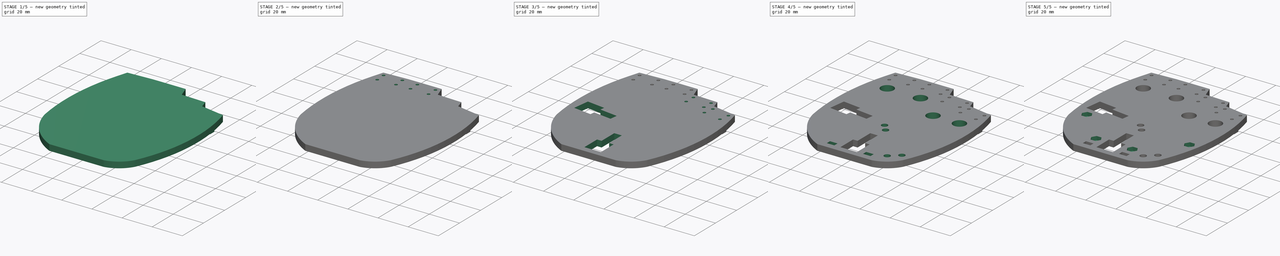
[diagram: build sequence overview — one tinted view per stage of 5, left to right]
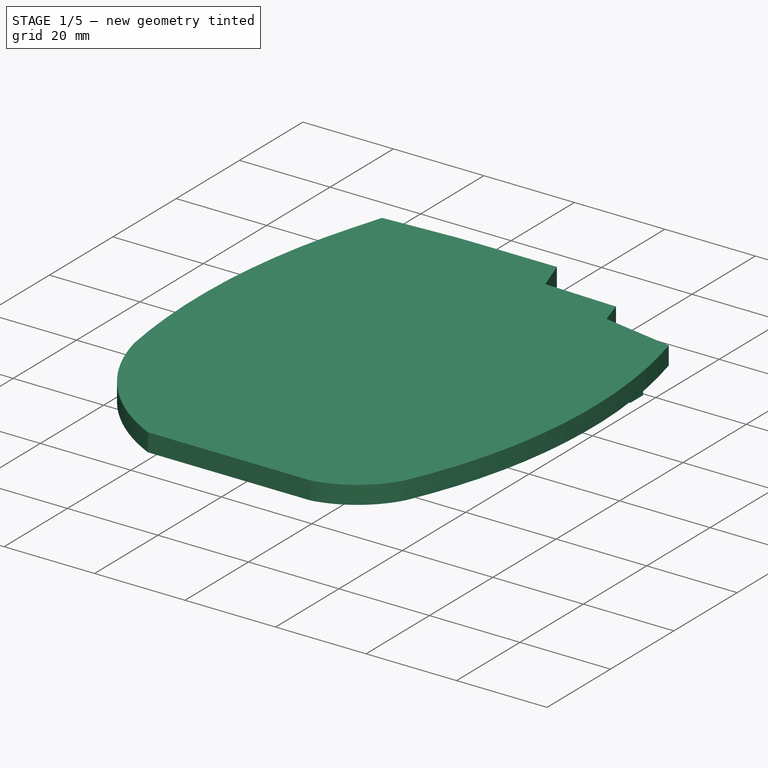
[diagram: stage 1 of 5 — iso view after this stage's code; geometry added in this stage tinted green]
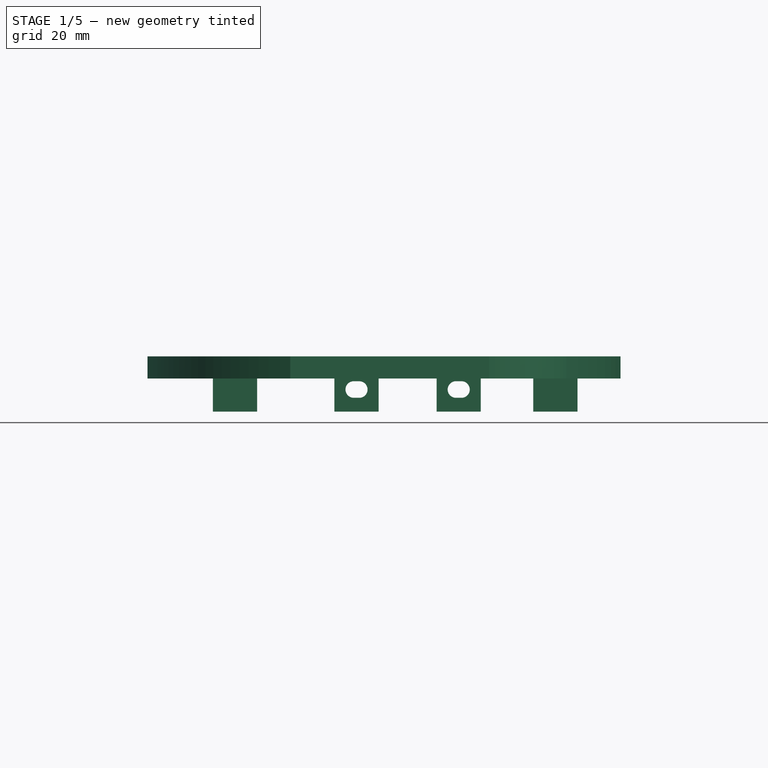
[diagram: stage 1 of 5 — front view after this stage's code; geometry added in this stage tinted green]
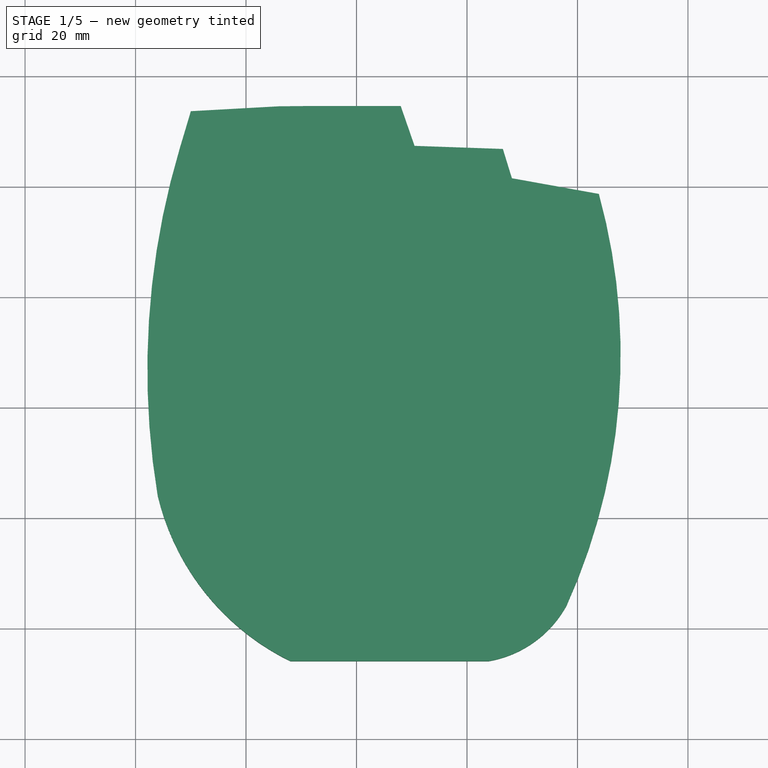
[diagram: stage 1 of 5 — top view after this stage's code; geometry added in this stage tinted green]
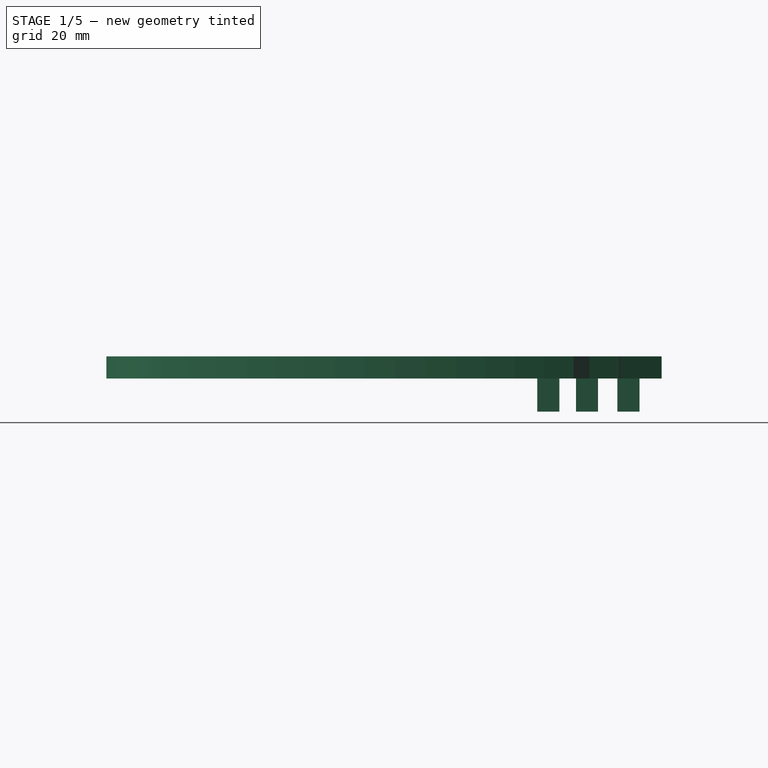
[diagram: stage 1 of 5 — right view after this stage's code; geometry added in this stage tinted green]
FCSTD DOCUMENT  (FreeCAD 0.15R4671 (Git))
Label: PalmDown
License: All rights reserved
LicenseURL: http://en.wikipedia.org/wiki/All_rights_reserved
objects: Sketcher::SketchObject×18, PartDesign::Pocket×15, PartDesign::Pad×3, PartDesign::Fillet×2
note: 56 computed .brp shape members not serialized (recipe doc carries the construction recipe); baked Part::Feature solids carry a one-line shape summary decoded from their .brp

FEATURE [Sketcher::SketchObject] Sketch
  sketch-geometry (21):
    g0: LineSegment StartX=43.8729 StartY=78.5795 StartZ=0 EndX=28.1271 EndY=81.4205 EndZ=0
    g1: LineSegment StartX=28.1271 StartY=81.4205 StartZ=0 EndX=26.4951 EndY=86.7201 EndZ=0
    g2: LineSegment StartX=26.4951 StartY=86.7201 StartZ=0 EndX=10.5049 EndY=87.2799 EndZ=0
    g3: LineSegment StartX=10.5049 StartY=87.2799 StartZ=0 EndX=8 EndY=94.5 EndZ=0
    g4: LineSegment StartX=8 StartY=94.5 StartZ=0 EndX=-8 EndY=94.5 EndZ=0
    g5: LineSegment StartX=-8 StartY=94.5 StartZ=0 EndX=-14.0123 EndY=94.4427 EndZ=0
    g6: LineSegment StartX=-14.0123 StartY=94.4427 StartZ=0 EndX=-29.9877 EndY=93.5573 EndZ=0
    g7: ArcOfCircle CenterX=20.5055 CenterY=13.6923 CenterZ=0 NormalX=0 NormalY=0 NormalZ=1 Radius=20 StartAngle=4.88802 EndAngle=5.77726
    g8: ArcOfCircle CenterX=-62.1892 CenterY=49.4105 CenterZ=0 NormalX=0 NormalY=0 NormalZ=1 Radius=110 StartAngle=5.85763 EndAngle=6.55157
    g9: ArcOfCircle CenterX=7.77666 CenterY=34.4213 CenterZ=0 NormalX=0 NormalY=0 NormalZ=1 Radius=45 StartAngle=3.3753 EndAngle=4.25737
    g10: LineSegment [constr] StartX=47.8108 StartY=0 StartZ=0 EndX=47.8108 EndY=94.5 EndZ=0
    g11: LineSegment [constr] StartX=-37.8597 StartY=0 StartZ=0 EndX=-37.8597 EndY=94.5 EndZ=0
    g12: GeomPoint [constr] X=0 Y=0 Z=0
    g13: LineSegment [constr] StartX=0 StartY=0 StartZ=0 EndX=-22 EndY=94 EndZ=0
    g14: LineSegment [constr] StartX=0 StartY=0 StartZ=0 EndX=0 EndY=94.5 EndZ=0
    g15: LineSegment [constr] StartX=18.5 StartY=87 StartZ=0 EndX=0 EndY=0 EndZ=0
    g16: LineSegment [constr] StartX=0 StartY=0 StartZ=0 EndX=36 EndY=80 EndZ=0
    g17: LineSegment StartX=-29.9877 StartY=93.5573 StartZ=0 EndX=-32 EndY=86.8225 EndZ=0
    g18: ArcOfCircle CenterX=102.14 CenterY=46.743 CenterZ=0 NormalX=0 NormalY=0 NormalZ=1 Radius=140 StartAngle=2.85125 EndAngle=3.30477
    g19: LineSegment StartX=-12 StartY=-6 StartZ=0 EndX=24 EndY=-6 EndZ=0
    g20: LineSegment [constr] StartX=0 StartY=0 StartZ=0 EndX=0 EndY=-6 EndZ=0
  constraints (67):
    c: Coincident(g1,g0)
    c: Coincident(g2,g1)
    c: Coincident(g3,g2)
    c: Coincident(g4,g3)
    c: Coincident(g5,g4)
    c: Coincident(g6,g5)
    c: Coincident(g8,g0)
    c: Coincident(g8,g7)
    c: Equal(g0,g2)
    c: Equal(g2,g4)
    c: Vertical(g10)
    c: Vertical(g11)
    c: Tangent(g10,g8)
    c: Radius(g7) = 20
    c: Radius(g9) = 45
    c: Radius(g8) = 110
    c: Coincident(g13,g12)
    c: PointOnObject(g13,g6)
    c: Coincident(g14,g12)
    c: PointOnObject(g14,g4)
    c: PointOnObject(g15,g2)
    c: Coincident(g15,g12)
    c: Coincident(g16,g12)
    c: PointOnObject(g16,g0)
    c: Horizontal(g4)
    c: Vertical(g14)
    c: Symmetric(g4,g3,g14)
    c: DistanceY(g14,g12) = -94.5
    c: DistanceY(g15,g12) = -87
    c: DistanceY(g12,g16) = 80
    c: Angle(g6,g13) = 1.74533
    c: DistanceY(g9,g12) = -24
    c: DistanceX(g9,g12) = 36
    c: DistanceX(g12,g7) = 38
    c: DistanceY(g12,g7) = 4
    c: Coincident(g-1,g12)
    c: Equal(g14,g11)
    c: Equal(g11,g10)
    c: PointOnObject(g10,g-1)
    c: PointOnObject(g11,g-1)
    c: Angle(g16,g0) = 1.81514
    c: Angle(g15,g2) = 1.74533
    c: Distance(g2,g15) = 8
    c: Distance(g0,g16) = 8
    c: DistanceX(g4) = -16
    c: Distance(g13,g5) = 8
    c: DistanceY(g-1,g13) = 94
    c: DistanceX(g-1,g13) = -22
    c: DistanceX(g14,g15) = 18.5
    c: DistanceX(g-1,g16) = 36
    c: Coincident(g17,g6)
    c: Equal(g6,g4)
    c: Coincident(g18,g9)
    c: Coincident(g18,g17)
    c: Radius(g18) = 140
    c: Tangent(g17,g18)
    c: DistanceX(g-1,g17) = -32
    c: Tangent(g11,g18)
    c: Coincident(g19,g9)
    c: Coincident(g19,g7)
    c: Horizontal(g19)
    c: DistanceX(g19) = 36
    c: Coincident(g20,g-1)
    c: PointOnObject(g20,g19)
    c: Vertical(g20)
    c: DistanceX(g-1,g9) = -12
    c: DistanceY(g-1,g9) = -6
FEATURE [PartDesign::Pad] Pad  label="Main Down Palm"
  Length = 4
  Length2 = 100
  Sketch = -> Sketch
  Type = 0
FEATURE [Sketcher::SketchObject] Sketch005
  ExternalGeometry = -> [Pad]
  Placement = pos=(0,0,0) rot=(1,0,0;3.14159rad)
  Support = -> Pad [Face14]
  sketch-geometry (24):
    g0: LineSegment StartX=-4 StartY=-90.5 StartZ=0 EndX=4 EndY=-90.5 EndZ=0
    g1: LineSegment StartX=4 StartY=-90.5 StartZ=0 EndX=4 EndY=-86.5 EndZ=0
    g2: LineSegment StartX=4 StartY=-86.5 StartZ=0 EndX=-4 EndY=-86.5 EndZ=0
    g3: LineSegment StartX=-4 StartY=-86.5 StartZ=0 EndX=-4 EndY=-90.5 EndZ=0
    g4: LineSegment [constr] StartX=0 StartY=-94.5 StartZ=0 EndX=0 EndY=-90.5 EndZ=0
    g5: LineSegment StartX=-26 StartY=-86.5 StartZ=0 EndX=-18 EndY=-86.5 EndZ=0
    g6: LineSegment StartX=-18 StartY=-86.5 StartZ=0 EndX=-18 EndY=-90.5 EndZ=0
    g7: LineSegment StartX=-18 StartY=-90.5 StartZ=0 EndX=-26 EndY=-90.5 EndZ=0
    g8: LineSegment StartX=-26 StartY=-90.5 StartZ=0 EndX=-26 EndY=-86.5 EndZ=0
    g9: LineSegment [constr] StartX=-22 StartY=-90.5 StartZ=0 EndX=-22 EndY=-94 EndZ=0
    g10: LineSegment StartX=14.5 StartY=-72 StartZ=0 EndX=22.5 EndY=-72 EndZ=0
    g11: LineSegment StartX=22.5 StartY=-72 StartZ=0 EndX=22.5 EndY=-76 EndZ=0
    g12: LineSegment StartX=22.5 StartY=-76 StartZ=0 EndX=14.5 EndY=-76 EndZ=0
    g13: LineSegment StartX=14.5 StartY=-76 StartZ=0 EndX=14.5 EndY=-72 EndZ=0
    g14: LineSegment [constr] StartX=18.5 StartY=-87 StartZ=0 EndX=18.5 EndY=-76 EndZ=0
    g15: LineSegment StartX=32 StartY=-72 StartZ=0 EndX=40 EndY=-72 EndZ=0
    g16: LineSegment StartX=40 StartY=-72 StartZ=0 EndX=40 EndY=-76 EndZ=0
    g17: LineSegment StartX=40 StartY=-76 StartZ=0 EndX=32 EndY=-76 EndZ=0
    g18: LineSegment StartX=32 StartY=-76 StartZ=0 EndX=32 EndY=-72 EndZ=0
    g19: LineSegment [constr] StartX=36 StartY=-76 StartZ=0 EndX=36 EndY=-80 EndZ=0
    g20: LineSegment StartX=14.5 StartY=-79 StartZ=0 EndX=22.5 EndY=-79 EndZ=0
    g21: LineSegment StartX=22.5 StartY=-79 StartZ=0 EndX=22.5 EndY=-83 EndZ=0
    g22: LineSegment StartX=22.5 StartY=-83 StartZ=0 EndX=14.5 EndY=-83 EndZ=0
    g23: LineSegment StartX=14.5 StartY=-83 StartZ=0 EndX=14.5 EndY=-79 EndZ=0
  constraints (75):
    c: Coincident(g0,g1)
    c: Coincident(g1,g2)
    c: Coincident(g2,g3)
    c: Coincident(g3,g0)
    c: Horizontal(g0)
    c: Horizontal(g2)
    c: Vertical(g1)
    c: Vertical(g3)
    c: DistanceY(g0,g-3) = -4
    c: PointOnObject(g4,g-3)
    c: PointOnObject(g4,g0)
    c: Vertical(g4)
    c: PointOnObject(g4,g-2)
    c: Symmetric(g0,g0,g4)
    c: DistanceX(g2) = -8
    c: DistanceY(g3) = -4
    c: Coincident(g5,g6)
    c: Coincident(g6,g7)
    c: Coincident(g7,g8)
    c: Coincident(g8,g5)
    c: Horizontal(g5)
    c: Horizontal(g7)
    c: Vertical(g6)
    c: Vertical(g8)
    c: Equal(g8,g3)
    c: Equal(g5,g2)
    c: PointOnObject(g9,g7)
    c: PointOnObject(g9,g-4)
    c: Vertical(g9)
    c: Symmetric(g7,g6,g9)
    c: Distance(g-4,g9) = 8
    c: DistanceY(g9) = -3.5
    c: Coincident(g10,g11)
    c: Coincident(g11,g12)
    c: Coincident(g12,g13)
    c: Coincident(g13,g10)
    c: Horizontal(g10)
    c: Horizontal(g12)
    c: Vertical(g11)
    c: Vertical(g13)
    c: Equal(g12,g2)
    c: Equal(g13,g3)
    c: PointOnObject(g14,g-5)
    c: PointOnObject(g14,g12)
    c: Distance(g14,g-5) = 8
    c: Symmetric(g12,g11,g14)
    c: Coincident(g15,g16)
    c: Coincident(g16,g17)
    c: Coincident(g17,g18)
    c: Coincident(g18,g15)
    c: Horizontal(g15)
    c: Horizontal(g17)
    c: Vertical(g16)
    c: Vertical(g18)
    c: PointOnObject(g19,g-6)
    c: PointOnObject(g19,g17)
    c: Vertical(g19)
    c: Equal(g18,g3)
    c: Equal(g17,g2)
    c: Symmetric(g17,g16,g19)
    c: Distance(g19,g-6) = 8
    c: DistanceY(g19) = -4
    c: Coincident(g20,g21)
    c: Coincident(g21,g22)
    c: Coincident(g22,g23)
    c: Coincident(g23,g20)
    c: Horizontal(g20)
    c: Horizontal(g22)
    c: Vertical(g21)
    c: Vertical(g23)
    c: Symmetric(g22,g21,g14)
    c: Equal(g22,g2)
    c: Equal(g23,g3)
    c: DistanceY(g11,g14) = -11
    c: DistanceY(g14,g21) = 4
FEATURE [PartDesign::Pad] Pad001  label="Tendon Routing Pillars"
  Length = 6
  Length2 = 100
  Sketch = -> Sketch005
  Type = 0
FEATURE [Sketcher::SketchObject] Sketch006
  Placement = pos=(0,90.5,0) rot=(0,0.707107,0.707107;3.14159rad)
  Support = -> Pad001 [Face18]
  sketch-geometry (6):
    g0: ArcOfCircle CenterX=-0.500005 CenterY=-2 CenterZ=0 NormalX=0 NormalY=0 NormalZ=1 Radius=1.5 StartAngle=1.57079 EndAngle=4.71239
    g1: ArcOfCircle CenterX=0.499995 CenterY=-2 CenterZ=0 NormalX=0 NormalY=0 NormalZ=1 Radius=1.5 StartAngle=4.71239 EndAngle=7.85398
    g2: LineSegment StartX=-0.499995 StartY=-0.5 StartZ=0 EndX=0.499995 EndY=-0.5 EndZ=0
    g3: LineSegment StartX=-0.500005 StartY=-3.5 StartZ=0 EndX=0.499995 EndY=-3.5 EndZ=0
    g4: LineSegment [constr] StartX=0.499995 StartY=-0.5 StartZ=0 EndX=0.499995 EndY=-3.5 EndZ=0
    g5: LineSegment [constr] StartX=-0.500005 StartY=-0.5 StartZ=0 EndX=-0.500005 EndY=-3.5 EndZ=0
  constraints (20):
    c: Horizontal(g3)
    c: Tangent(g2,g0)
    c: PointOnObject(g5,g0)
    c: Equal(g1,g0)
    c: PointOnObject(g5,g0)
    c: Vertical(g4)
    c: Vertical(g5)
    c: Coincident(g1,g3)
    c: Coincident(g1,g2)
    c: Coincident(g0,g2)
    c: Coincident(g0,g3)
    c: Coincident(g4,g1)
    c: Coincident(g1,g4)
    c: PointOnObject(g0,g5)
    c: PointOnObject(g1,g4)
    c: Coincident(g5,g0)
    c: Radius(g1) = 1.5
    c: Symmetric(g1,g0,g-2)
    c: DistanceY(g-1,g1) = -2
    c: DistanceX(g0,g1) = 1
FEATURE [PartDesign::Pocket] Pocket  label="Middle Tendon"
  Length = 5
  Sketch = -> Sketch006
  Type = 2
FEATURE [Sketcher::SketchObject] Sketch019
  ExternalGeometry = -> [Pocket]
  Placement = pos=(0,83,0) rot=(0,0.707107,0.707107;3.14159rad)
  Support = -> Pocket [Face23]
  sketch-geometry (8):
    g0: ArcOfCircle CenterX=-19 CenterY=-2 CenterZ=0 NormalX=0 NormalY=0 NormalZ=1 Radius=1.5 StartAngle=1.57079 EndAngle=4.71239
    g1: ArcOfCircle CenterX=-18 CenterY=-2 CenterZ=0 NormalX=0 NormalY=0 NormalZ=1 Radius=1.5 StartAngle=4.71239 EndAngle=7.85398
    g2: LineSegment StartX=-19 StartY=-0.5 StartZ=0 EndX=-18 EndY=-0.5 EndZ=0
    g3: LineSegment StartX=-19 StartY=-3.5 StartZ=0 EndX=-18 EndY=-3.5 EndZ=0
    g4: LineSegment [constr] StartX=-18 StartY=-0.5 StartZ=0 EndX=-18 EndY=-3.5 EndZ=0
    g5: LineSegment [constr] StartX=-19 StartY=-0.5 StartZ=0 EndX=-19 EndY=-3.5 EndZ=0
    g6: LineSegment [constr] StartX=-18.5 StartY=0 StartZ=0 EndX=-18.5 EndY=-2 EndZ=0
    g7: LineSegment [constr] StartX=-19 StartY=-2 StartZ=0 EndX=-18 EndY=-2 EndZ=0
  constraints (25):
    c: Horizontal(g3)
    c: Tangent(g2,g0)
    c: PointOnObject(g5,g0)
    c: Equal(g1,g0)
    c: PointOnObject(g5,g0)
    c: Vertical(g4)
    c: Vertical(g5)
    c: Coincident(g1,g3)
    c: Coincident(g1,g2)
    c: Coincident(g0,g2)
    c: Coincident(g0,g3)
    c: Coincident(g4,g1)
    c: Coincident(g1,g4)
    c: PointOnObject(g0,g5)
    c: PointOnObject(g1,g4)
    c: Coincident(g5,g0)
    c: Radius(g1) = 1.5
    c: DistanceX(g0,g1) = 1
    c: PointOnObject(g6,g-3)
    c: Symmetric(g-3,g-3,g6)
    c: Coincident(g7,g0)
    c: Coincident(g7,g1)
    c: PointOnObject(g6,g7)
    c: Symmetric(g0,g1,g6)
    c: DistanceY(g6) = -2
FEATURE [PartDesign::Pocket] Pocket001  label="Ring Tendon"
  Length = 5
  Sketch = -> Sketch019
  Type = 1
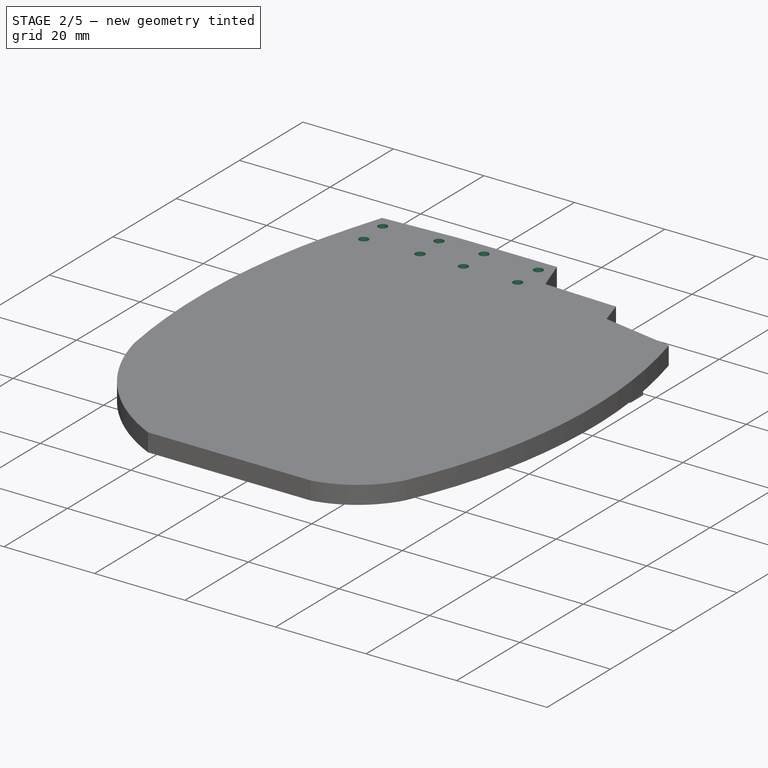
[diagram: stage 2 of 5 — iso view after this stage's code; geometry added in this stage tinted green]
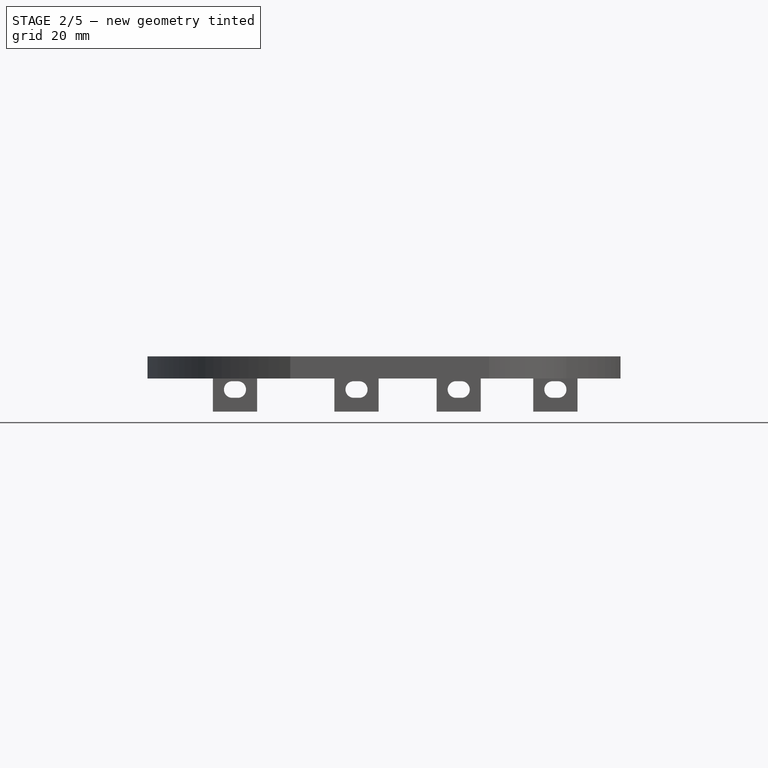
[diagram: stage 2 of 5 — front view after this stage's code; geometry added in this stage tinted green]
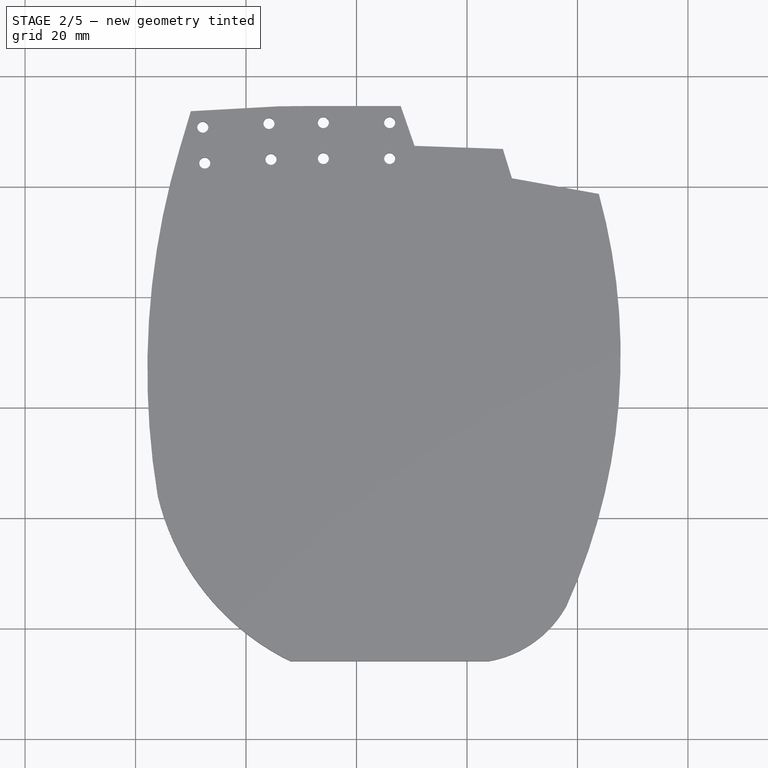
[diagram: stage 2 of 5 — top view after this stage's code; geometry added in this stage tinted green]
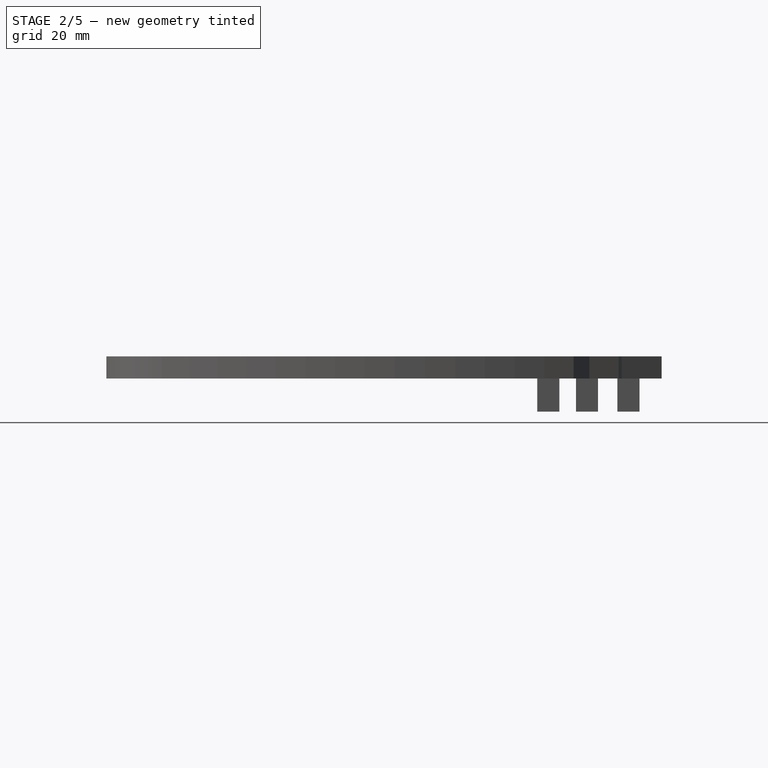
[diagram: stage 2 of 5 — right view after this stage's code; geometry added in this stage tinted green]
FEATURE [Sketcher::SketchObject] Sketch009
  ExternalGeometry = -> [Pocket001]
  Placement = pos=(0,76,0) rot=(0,0.707107,0.707107;3.14159rad)
  Support = -> Pocket001 [Face29]
  sketch-geometry (8):
    g0: ArcOfCircle CenterX=-36.5 CenterY=-2 CenterZ=0 NormalX=0 NormalY=0 NormalZ=1 Radius=1.5 StartAngle=1.57081 EndAngle=4.71239
    g1: ArcOfCircle CenterX=-35.5 CenterY=-2 CenterZ=0 NormalX=0 NormalY=0 NormalZ=1 Radius=1.5 StartAngle=4.71239 EndAngle=7.85398
    g2: LineSegment StartX=-36.5 StartY=-0.5 StartZ=0 EndX=-35.5 EndY=-0.5 EndZ=0
    g3: LineSegment StartX=-36.5 StartY=-3.5 StartZ=0 EndX=-35.5 EndY=-3.5 EndZ=0
    g4: LineSegment [constr] StartX=-35.5 StartY=-0.5 StartZ=0 EndX=-35.5 EndY=-3.5 EndZ=0
    g5: LineSegment [constr] StartX=-36.5 StartY=-0.5 StartZ=0 EndX=-36.5 EndY=-3.5 EndZ=0
    g6: LineSegment [constr] StartX=-36.5 StartY=-2 StartZ=0 EndX=-35.5 EndY=-2 EndZ=0
    g7: LineSegment [constr] StartX=-36 StartY=0 StartZ=0 EndX=-36 EndY=-2 EndZ=0
  constraints (25):
    c: Horizontal(g3)
    c: Tangent(g2,g0)
    c: PointOnObject(g5,g0)
    c: Equal(g1,g0)
    c: PointOnObject(g5,g0)
    c: Vertical(g4)
    c: Vertical(g5)
    c: Coincident(g1,g3)
    c: Coincident(g1,g2)
    c: Coincident(g0,g2)
    c: Coincident(g0,g3)
    c: Coincident(g4,g1)
    c: Coincident(g1,g4)
    c: PointOnObject(g0,g5)
    c: PointOnObject(g1,g4)
    c: Coincident(g5,g0)
    c: Radius(g1) = 1.5
    c: DistanceX(g0,g1) = 1
    c: Coincident(g6,g0)
    c: Coincident(g6,g1)
    c: PointOnObject(g7,g6)
    c: Symmetric(g0,g1,g7)
    c: DistanceY(g7) = -2
    c: PointOnObject(g7,g-3)
    c: Symmetric(g-3,g-3,g7)
FEATURE [PartDesign::Pocket] Pocket002  label="Pinky Tendon"
  Length = 5
  Sketch = -> Sketch009
  Type = 1
FEATURE [Sketcher::SketchObject] Sketch010
  ExternalGeometry = -> [Pocket002]
  Placement = pos=(0,90.5,0) rot=(0,0.707107,0.707107;3.14159rad)
  Support = -> Pocket002 [Face32]
  sketch-geometry (8):
    g0: ArcOfCircle CenterX=21.5 CenterY=-2 CenterZ=0 NormalX=0 NormalY=0 NormalZ=1 Radius=1.5 StartAngle=1.5708 EndAngle=4.71239
    g1: ArcOfCircle CenterX=22.5 CenterY=-2 CenterZ=0 NormalX=0 NormalY=0 NormalZ=1 Radius=1.5 StartAngle=4.71239 EndAngle=7.85398
    g2: LineSegment StartX=21.5 StartY=-0.5 StartZ=0 EndX=22.5 EndY=-0.5 EndZ=0
    g3: LineSegment StartX=21.5 StartY=-3.5 StartZ=0 EndX=22.5 EndY=-3.5 EndZ=0
    g4: LineSegment [constr] StartX=22.5 StartY=-0.5 StartZ=0 EndX=22.5 EndY=-3.5 EndZ=0
    g5: LineSegment [constr] StartX=21.5 StartY=-0.5 StartZ=0 EndX=21.5 EndY=-3.5 EndZ=0
    g6: LineSegment [constr] StartX=21.5 StartY=-2 StartZ=0 EndX=22.5 EndY=-2 EndZ=0
    g7: LineSegment [constr] StartX=22 StartY=0 StartZ=0 EndX=22 EndY=-2 EndZ=0
  constraints (25):
    c: Horizontal(g3)
    c: Tangent(g2,g0)
    c: PointOnObject(g5,g0)
    c: Equal(g1,g0)
    c: PointOnObject(g5,g0)
    c: Vertical(g4)
    c: Vertical(g5)
    c: Coincident(g1,g3)
    c: Coincident(g1,g2)
    c: Coincident(g0,g2)
    c: Coincident(g0,g3)
    c: Coincident(g4,g1)
    c: Coincident(g1,g4)
    c: PointOnObject(g0,g5)
    c: PointOnObject(g1,g4)
    c: Coincident(g5,g0)
    c: Radius(g1) = 1.5
    c: DistanceX(g0,g1) = 1
    c: Coincident(g6,g0)
    c: Coincident(g6,g1)
    c: PointOnObject(g7,g6)
    c: Symmetric(g0,g1,g7)
    c: DistanceY(g7) = -2
    c: PointOnObject(g7,g-3)
    c: Symmetric(g-3,g-3,g7)
FEATURE [PartDesign::Pocket] Pocket003  label="Index Tendon"
  Length = 5
  Sketch = -> Sketch010
  Type = 1
FEATURE [Sketcher::SketchObject] Sketch011
  ExternalGeometry = -> [Pocket003]
  Placement = pos=(0,0,0) rot=(1,0,0;3.14159rad)
  Support = -> Pocket003 [Face4]
  sketch-geometry (9):
    g0: Circle CenterX=-27.8248 CenterY=-90.6725 CenterZ=0 NormalX=0 NormalY=0 NormalZ=1 Radius=1
    g1: Circle CenterX=-15.8432 CenterY=-91.3367 CenterZ=0 NormalX=0 NormalY=0 NormalZ=1 Radius=1
    g2: LineSegment [constr] StartX=-27.8248 StartY=-90.6725 StartZ=0 EndX=-15.8432 EndY=-91.3367 EndZ=0
    g3: Circle CenterX=-27.465 CenterY=-84.1825 CenterZ=0 NormalX=0 NormalY=0 NormalZ=1 Radius=1
    g4: Circle CenterX=-15.4834 CenterY=-84.8466 CenterZ=0 NormalX=0 NormalY=0 NormalZ=1 Radius=1
    g5: LineSegment [constr] StartX=-15.8432 StartY=-91.3367 StartZ=0 EndX=-15.4834 EndY=-84.8466 EndZ=0
    g6: LineSegment [constr] StartX=-27.465 StartY=-84.1825 StartZ=0 EndX=-15.4834 EndY=-84.8466 EndZ=0
    g7: LineSegment [constr] StartX=-27.465 StartY=-84.1825 StartZ=0 EndX=-27.8248 EndY=-90.6725 EndZ=0
    g8: LineSegment [constr] StartX=-21.4742 StartY=-84.5146 StartZ=0 EndX=-21.834 EndY=-91.0046 EndZ=0
  constraints (22):
    c: Coincident(g2,g0)
    c: Coincident(g2,g1)
    c: Coincident(g5,g1)
    c: Coincident(g5,g4)
    c: Coincident(g6,g3)
    c: Coincident(g6,g4)
    c: Coincident(g7,g3)
    c: Coincident(g7,g0)
    c: Perpendicular(g2,g7)
    c: Parallel(g6,g2)
    c: Perpendicular(g2,g5)
    c: Equal(g3,g0)
    c: Equal(g0,g1)
    c: Equal(g1,g4)
    c: Radius(g4) = 1
    c: Distance(g2) = 12
    c: Distance(g5) = 6.5
    c: PointOnObject(g8,g6)
    c: PointOnObject(g8,g2)
    c: Symmetric(g3,g4,g8)
    c: Symmetric(g-3,g-3,g8)
    c: Distance(g1,g-3) = 3
FEATURE [PartDesign::Pocket] Pocket004  label="Pinky Stich Pockets"
  Length = 5
  Sketch = -> Sketch011
  Type = 1
FEATURE [Sketcher::SketchObject] Sketch012
  ExternalGeometry = -> [Pocket004]
  Placement = pos=(0,0,0) rot=(1,0,0;3.14159rad)
  Support = -> Pocket004 [Face4]
  sketch-geometry (9):
    g0: Circle CenterX=-6 CenterY=-91.5 CenterZ=0 NormalX=0 NormalY=0 NormalZ=1 Radius=1
    g1: Circle CenterX=6 CenterY=-91.5 CenterZ=0 NormalX=0 NormalY=0 NormalZ=1 Radius=1
    g2: LineSegment [constr] StartX=-6 StartY=-91.5 StartZ=0 EndX=6 EndY=-91.5 EndZ=0
    g3: Circle CenterX=-6 CenterY=-85 CenterZ=0 NormalX=0 NormalY=0 NormalZ=1 Radius=1
    g4: Circle CenterX=6 CenterY=-85 CenterZ=0 NormalX=0 NormalY=0 NormalZ=1 Radius=1
    g5: LineSegment [constr] StartX=6 StartY=-91.5 StartZ=0 EndX=6 EndY=-85 EndZ=0
    g6: LineSegment [constr] StartX=-6 StartY=-85 StartZ=0 EndX=6 EndY=-85 EndZ=0
    g7: LineSegment [constr] StartX=-6 StartY=-85 StartZ=0 EndX=-6 EndY=-91.5 EndZ=0
    g8: LineSegment [constr] StartX=0 StartY=-85 StartZ=0 EndX=0 EndY=-91.5 EndZ=0
  constraints (23):
    c: Coincident(g2,g0)
    c: Coincident(g2,g1)
    c: Coincident(g5,g1)
    c: Coincident(g5,g4)
    c: Coincident(g6,g3)
    c: Coincident(g6,g4)
    c: Coincident(g7,g3)
    c: Coincident(g7,g0)
    c: Perpendicular(g2,g7)
    c: Parallel(g6,g2)
    c: Perpendicular(g2,g5)
    c: Equal(g3,g0)
    c: Equal(g0,g1)
    c: Equal(g1,g4)
    c: Radius(g4) = 1
    c: Distance(g2) = 12
    c: Distance(g5) = 6.5
    c: PointOnObject(g8,g6)
    c: PointOnObject(g8,g2)
    c: Symmetric(g3,g4,g8)
    c: PointOnObject(g8,g-2)
    c: Symmetric(g-3,g-3,g8)
    c: DistanceY(g1,g-3) = -3
FEATURE [PartDesign::Pocket] Pocket005  label="Middle Stitch Pockets"
  Length = 5
  Sketch = -> Sketch012
  Type = 1
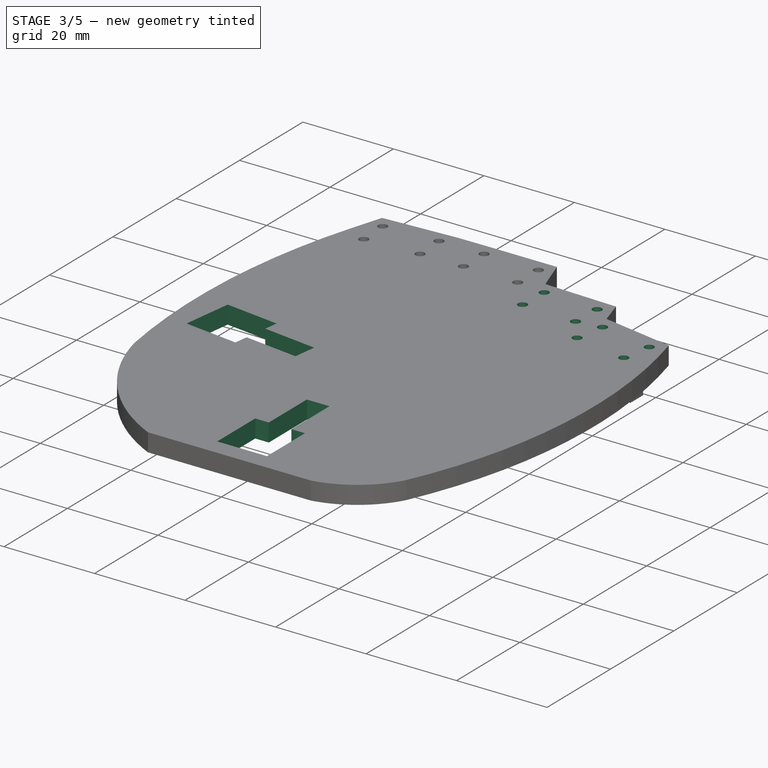
[diagram: stage 3 of 5 — iso view after this stage's code; geometry added in this stage tinted green]
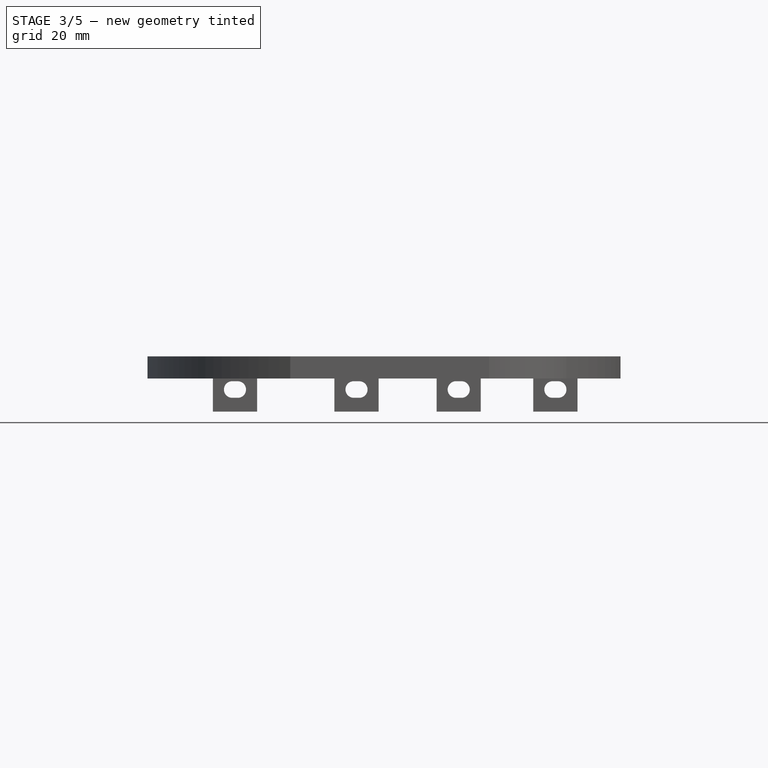
[diagram: stage 3 of 5 — front view after this stage's code; geometry added in this stage tinted green]
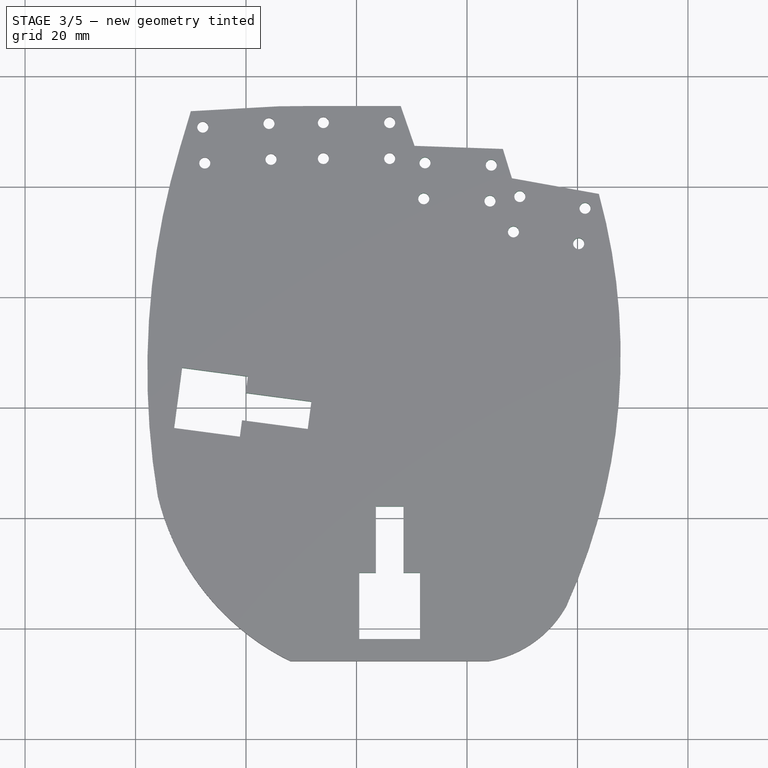
[diagram: stage 3 of 5 — top view after this stage's code; geometry added in this stage tinted green]
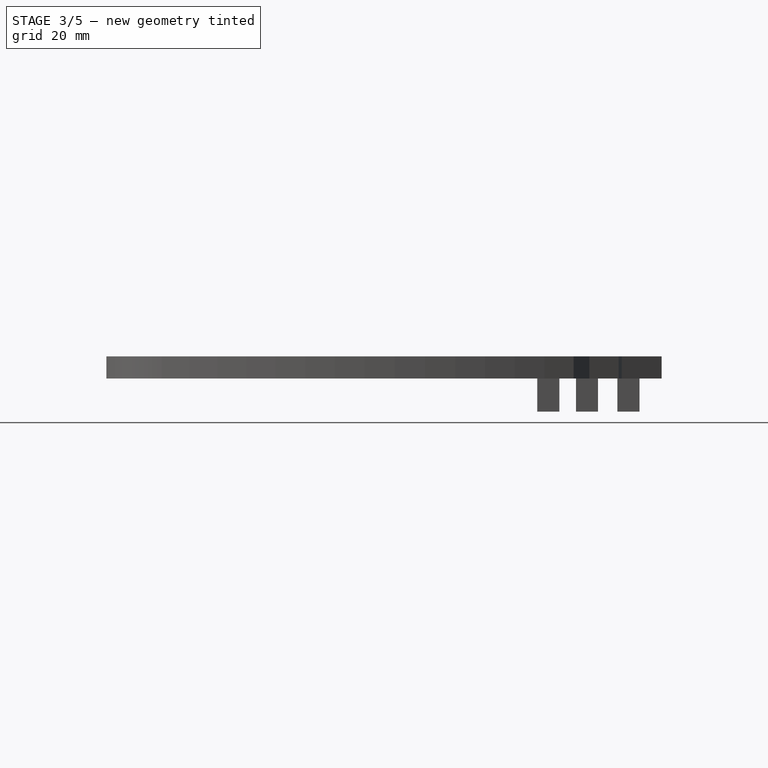
[diagram: stage 3 of 5 — right view after this stage's code; geometry added in this stage tinted green]
FEATURE [Sketcher::SketchObject] Sketch013
  ExternalGeometry = -> [Pocket005]
  Placement = pos=(0,0,0) rot=(1,0,0;3.14159rad)
  Support = -> Pocket005 [Face4]
  sketch-geometry (9):
    g0: Circle CenterX=12.3987 CenterY=-84.2117 CenterZ=0 NormalX=0 NormalY=0 NormalZ=1 Radius=1
    g1: Circle CenterX=24.3914 CenterY=-83.7919 CenterZ=0 NormalX=0 NormalY=0 NormalZ=1 Radius=1
    g2: LineSegment [constr] StartX=12.3987 StartY=-84.2117 StartZ=0 EndX=24.3914 EndY=-83.7919 EndZ=0
    g3: Circle CenterX=12.1713 CenterY=-77.7157 CenterZ=0 NormalX=0 NormalY=0 NormalZ=1 Radius=1
    g4: Circle CenterX=24.164 CenterY=-77.2959 CenterZ=0 NormalX=0 NormalY=0 NormalZ=1 Radius=1
    g5: LineSegment [constr] StartX=24.3914 StartY=-83.7919 StartZ=0 EndX=24.164 EndY=-77.2959 EndZ=0
    g6: LineSegment [constr] StartX=12.1713 StartY=-77.7157 StartZ=0 EndX=24.164 EndY=-77.2959 EndZ=0
    g7: LineSegment [constr] StartX=12.1713 StartY=-77.7157 StartZ=0 EndX=12.3987 EndY=-84.2117 EndZ=0
    g8: LineSegment [constr] StartX=18.1677 StartY=-77.5058 StartZ=0 EndX=18.3951 EndY=-84.0018 EndZ=0
  constraints (22):
    c: Coincident(g2,g0)
    c: Coincident(g2,g1)
    c: Coincident(g5,g1)
    c: Coincident(g5,g4)
    c: Coincident(g6,g3)
    c: Coincident(g6,g4)
    c: Coincident(g7,g3)
    c: Coincident(g7,g0)
    c: Perpendicular(g2,g7)
    c: Parallel(g6,g2)
    c: Perpendicular(g2,g5)
    c: Equal(g3,g0)
    c: Equal(g0,g1)
    c: Equal(g1,g4)
    c: Radius(g4) = 1
    c: Distance(g2) = 12
    c: Distance(g5) = 6.5
    c: PointOnObject(g8,g6)
    c: PointOnObject(g8,g2)
    c: Symmetric(g4,g3,g8)
    c: Symmetric(g-3,g-3,g8)
    c: Distance(g1,g-3) = 3
FEATURE [PartDesign::Pocket] Pocket006  label="Ring Stitch Pockets"
  Length = 5
  Sketch = -> Sketch013
  Type = 1
FEATURE [Sketcher::SketchObject] Sketch014
  ExternalGeometry = -> [Pocket006]
  Placement = pos=(0,0,0) rot=(1,0,0;3.14159rad)
  Support = -> Pocket006 [Face4]
  sketch-geometry (9):
    g0: Circle CenterX=29.5627 CenterY=-78.113 CenterZ=0 NormalX=0 NormalY=0 NormalZ=1 Radius=1
    g1: Circle CenterX=41.372 CenterY=-75.9823 CenterZ=0 NormalX=0 NormalY=0 NormalZ=1 Radius=1
    g2: LineSegment [constr] StartX=29.5627 StartY=-78.113 StartZ=0 EndX=41.372 EndY=-75.9823 EndZ=0
    g3: Circle CenterX=28.4085 CenterY=-71.7163 CenterZ=0 NormalX=0 NormalY=0 NormalZ=1 Radius=1
    g4: Circle CenterX=40.2178 CenterY=-69.5856 CenterZ=0 NormalX=0 NormalY=0 NormalZ=1 Radius=1
    g5: LineSegment [constr] StartX=41.372 StartY=-75.9823 StartZ=0 EndX=40.2178 EndY=-69.5856 EndZ=0
    g6: LineSegment [constr] StartX=28.4085 StartY=-71.7163 StartZ=0 EndX=40.2178 EndY=-69.5856 EndZ=0
    g7: LineSegment [constr] StartX=28.4085 StartY=-71.7163 StartZ=0 EndX=29.5627 EndY=-78.113 EndZ=0
    g8: LineSegment [constr] StartX=34.3132 StartY=-70.651 StartZ=0 EndX=35.4673 EndY=-77.0477 EndZ=0
  constraints (22):
    c: Coincident(g2,g0)
    c: Coincident(g2,g1)
    c: Coincident(g5,g1)
    c: Coincident(g5,g4)
    c: Coincident(g6,g3)
    c: Coincident(g6,g4)
    c: Coincident(g7,g3)
    c: Coincident(g7,g0)
    c: Perpendicular(g2,g7)
    c: Parallel(g6,g2)
    c: Perpendicular(g2,g5)
    c: Equal(g3,g0)
    c: Equal(g0,g1)
    c: Equal(g1,g4)
    c: Radius(g4) = 1
    c: Distance(g2) = 12
    c: Distance(g5) = 6.5
    c: PointOnObject(g8,g6)
    c: PointOnObject(g8,g2)
    c: Symmetric(g4,g3,g8)
    c: Symmetric(g-3,g-3,g8)
    c: Distance(g1,g-3) = 3
FEATURE [PartDesign::Pocket] Pocket007  label="Pinky Stitch Pockets"
  Length = 5
  Sketch = -> Sketch014
  Type = 1
FEATURE [Sketcher::SketchObject] Sketch016
  Placement = pos=(0,0,0) rot=(1,0,0;3.14159rad)
  Support = -> Pocket007 [Face4]
  sketch-geometry (11):
    g0: LineSegment StartX=-8.82848 StartY=-36.0217 StartZ=0 EndX=-8.17152 EndY=-40.9783 EndZ=0
    g1: LineSegment StartX=-31.5693 StartY=-47.1057 StartZ=0 EndX=-33.0146 EndY=-36.2011 EndZ=0
    g2: GeomPoint [constr] X=-8.5 Y=-38.5 Z=0
    g3: LineSegment [constr] StartX=0 StartY=0 StartZ=0 EndX=-8.5 EndY=-38.5 EndZ=0
    g4: LineSegment [constr] StartX=-8.5 StartY=-38.5 StartZ=0 EndX=-32.2919 EndY=-41.6534 EndZ=0
    g5: LineSegment StartX=-33.0146 StartY=-36.2011 StartZ=0 EndX=-21.1186 EndY=-34.6244 EndZ=0
    g6: LineSegment StartX=-21.1186 StartY=-34.6244 StartZ=0 EndX=-20.7244 EndY=-37.5984 EndZ=0
    g7: LineSegment StartX=-20.7244 StartY=-37.5984 StartZ=0 EndX=-8.82848 EndY=-36.0217 EndZ=0
    g8: LineSegment StartX=-31.5693 StartY=-47.1057 StartZ=0 EndX=-19.6733 EndY=-45.529 EndZ=0
    g9: LineSegment StartX=-19.6733 StartY=-45.529 StartZ=0 EndX=-20.0675 EndY=-42.555 EndZ=0
    g10: LineSegment StartX=-20.0675 StartY=-42.555 StartZ=0 EndX=-8.17152 EndY=-40.9783 EndZ=0
  constraints (30):
    c: Distance(g0) = 5
    c: PointOnObject(g2,g0)
    c: Distance(g2,g0) = 2.5
    c: DistanceX(g-1,g2) = -8.5
    c: DistanceY(g-1,g2) = -38.5
    c: Coincident(g3,g-1)
    c: Coincident(g2,g3)
    c: Angle(g0,g3) = 2.79253
    c: Parallel(g1,g0)
    c: Coincident(g4,g2)
    c: PointOnObject(g4,g1)
    c: Symmetric(g1,g1,g4)
    c: Distance(g4) = 24
    c: Distance(g1) = 11
    c: Coincident(g5,g6)
    c: Coincident(g6,g7)
    c: Coincident(g7,g0)
    c: Coincident(g1,g8)
    c: Coincident(g8,g9)
    c: Coincident(g9,g10)
    c: Coincident(g10,g0)
    c: Parallel(g10,g4)
    c: Parallel(g4,g7)
    c: Perpendicular(g7,g6)
    c: Perpendicular(g9,g10)
    c: Parallel(g5,g4)
    c: Parallel(g4,g8)
    c: Symmetric(g9,g6,g4)
    c: Distance(g5) = 12
    c: Coincident(g5,g1)
FEATURE [PartDesign::Pocket] Pocket008  label="Thumb Tendon"
  Length = 5
  Sketch = -> Sketch016
  Type = 1
FEATURE [Sketcher::SketchObject] Sketch017
  ExternalGeometry = -> [Pocket008]
  Placement = pos=(0,0,0) rot=(1,0,0;3.14159rad)
  Support = -> Pocket008 [Face4]
  sketch-geometry (9):
    g0: LineSegment StartX=0.5 StartY=2 StartZ=0 EndX=11.5 EndY=2 EndZ=0
    g1: LineSegment StartX=11.5 StartY=2 StartZ=0 EndX=11.5 EndY=-10 EndZ=0
    g2: LineSegment StartX=0.5 StartY=-10 StartZ=0 EndX=0.5 EndY=2 EndZ=0
    g3: LineSegment [constr] StartX=6 StartY=6 StartZ=0 EndX=6 EndY=-22 EndZ=0
    g4: LineSegment StartX=3.5 StartY=-10 StartZ=0 EndX=3.5 EndY=-22 EndZ=0
    g5: LineSegment StartX=3.5 StartY=-22 StartZ=0 EndX=8.5 EndY=-22 EndZ=0
    g6: LineSegment StartX=8.5 StartY=-22 StartZ=0 EndX=8.5 EndY=-10 EndZ=0
    g7: LineSegment StartX=0.5 StartY=-10 StartZ=0 EndX=3.5 EndY=-10 EndZ=0
    g8: LineSegment StartX=8.5 StartY=-10 StartZ=0 EndX=11.5 EndY=-10 EndZ=0
  constraints (25):
    c: Symmetric(g0,g0,g3)
    c: DistanceY(g0,g-3) = 4
    c: DistanceY(g3) = -28
    c: DistanceX(g0) = 11
    c: DistanceX(g5) = 5
    c: Symmetric(g5,g4,g3)
    c: Coincident(g4,g7)
    c: Horizontal(g7)
    c: Vertical(g4)
    c: Vertical(g6)
    c: Symmetric(g-3,g-3,g3)
    c: Horizontal(g8)
    c: Vertical(g1)
    c: Vertical(g2)
    c: Coincident(g8,g1)
    c: Coincident(g0,g1)
    c: Coincident(g0,g2)
    c: Coincident(g2,g7)
    c: Coincident(g6,g8)
    c: Coincident(g4,g5)
    c: Coincident(g5,g6)
    c: PointOnObject(g3,g5)
    c: PointOnObject(g3,g-3)
    c: Symmetric(g4,g6,g3)
    c: DistanceY(g2) = 12
FEATURE [PartDesign::Pocket] Pocket009  label="Fingers Tendon "
  Length = 5
  Sketch = -> Sketch017
  Type = 1
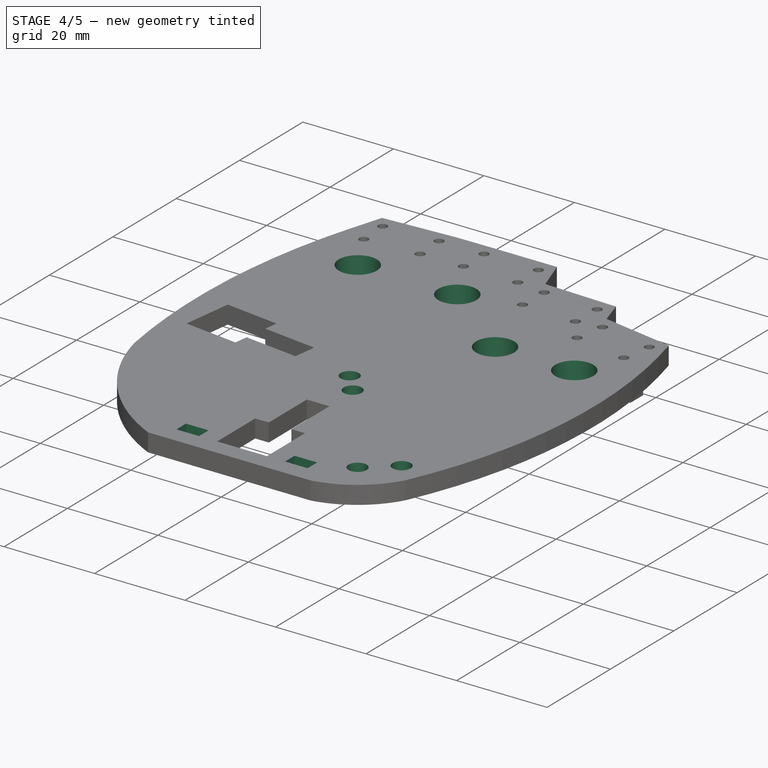
[diagram: stage 4 of 5 — iso view after this stage's code; geometry added in this stage tinted green]
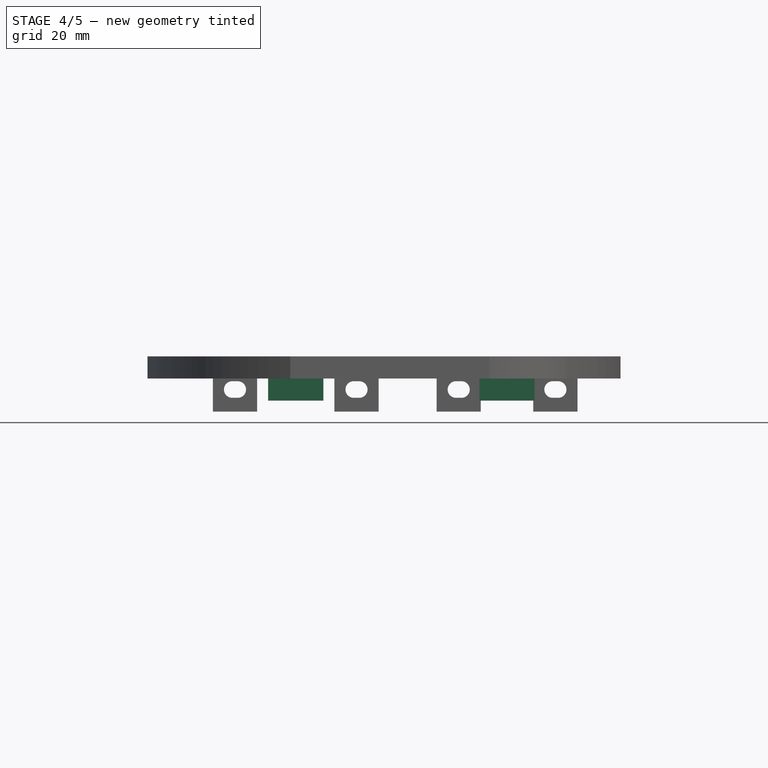
[diagram: stage 4 of 5 — front view after this stage's code; geometry added in this stage tinted green]
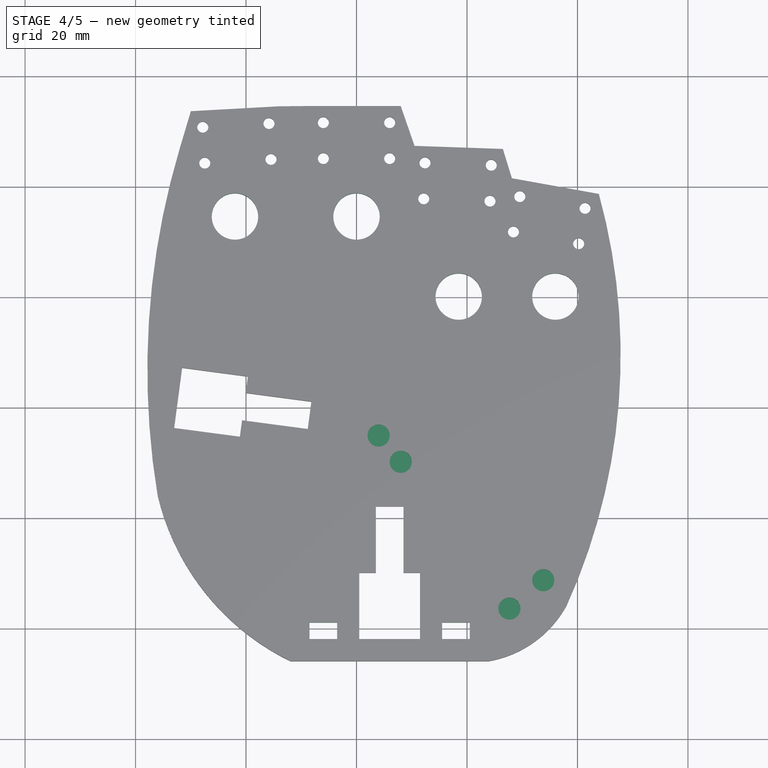
[diagram: stage 4 of 5 — top view after this stage's code; geometry added in this stage tinted green]
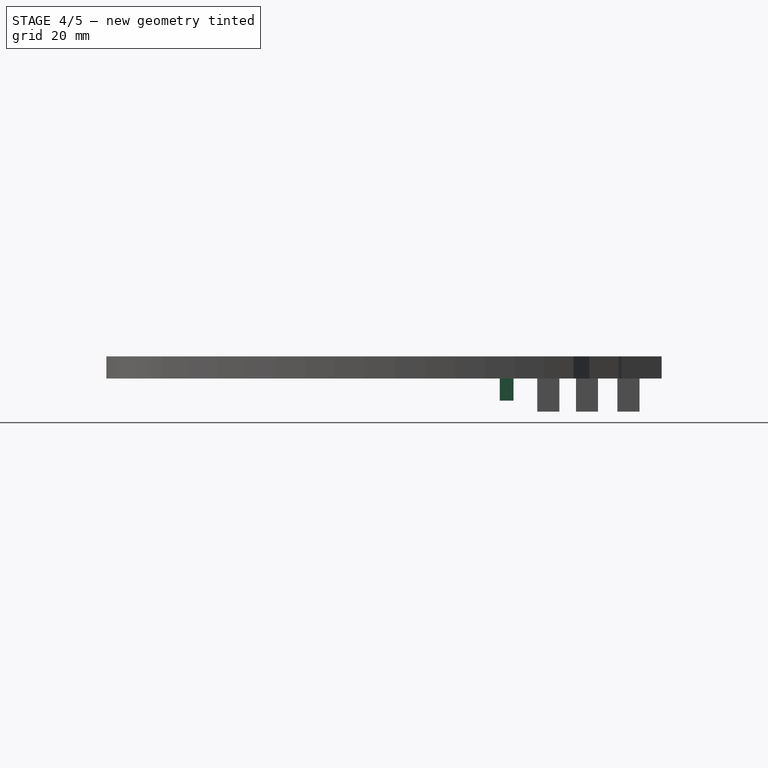
[diagram: stage 4 of 5 — right view after this stage's code; geometry added in this stage tinted green]
FEATURE [Sketcher::SketchObject] Sketch018
  ExternalGeometry = -> [Pocket009]
  Placement = pos=(0,0,4) rot=(0,0,1;0rad)
  Support = -> Pocket009 [Face5]
  sketch-geometry (8):
    g0: LineSegment [constr] StartX=-8.5 StartY=38.5 StartZ=0 EndX=6 EndY=36.5782 EndZ=0
    g1: LineSegment [constr] StartX=6 StartY=-2 StartZ=0 EndX=6 EndY=36.5782 EndZ=0
    g2: Circle CenterX=4 CenterY=34.8258 CenterZ=0 NormalX=0 NormalY=0 NormalZ=1 Radius=2
    g3: Circle CenterX=8 CenterY=30.0587 CenterZ=0 NormalX=0 NormalY=0 NormalZ=1 Radius=2
    g4: Circle CenterX=27.6801 CenterY=3.49343 CenterZ=0 NormalX=0 NormalY=0 NormalZ=1 Radius=2
    g5: Circle CenterX=33.8085 CenterY=8.63573 CenterZ=0 NormalX=0 NormalY=0 NormalZ=1 Radius=2
    g6: LineSegment [constr] StartX=30.7443 StartY=6.06458 StartZ=0 EndX=5.0328 EndY=36.7064 EndZ=0
    g7: LineSegment [constr] StartX=33.8085 StartY=8.63573 StartZ=0 EndX=27.6801 EndY=3.49343 EndZ=0
  constraints (25):
    c: Vertical(g1)
    c: PointOnObject(g0,g1)
    c: Coincident(g1,g0)
    c: Radius(g2) = 2
    c: Tangent(g2,g0)
    c: Tangent(g2,g1)
    c: Equal(g2,g3)
    c: Equal(g3,g4)
    c: Tangent(g3,g1)
    c: Equal(g5,g2)
    c: Tangent(g6,g2)
    c: Tangent(g3,g6)
    c: Coincident(g7,g5)
    c: Coincident(g7,g4)
    c: Perpendicular(g6,g7)
    c: Symmetric(g4,g5,g6)
    c: Distance(g7) = 8
    c: PointOnObject(g6,g0)
    c: PointOnObject(g6,g7)
    c: Angle(g1,g6) = 0.698132
    c: Distance(g6) = 40
    c: Symmetric(g-3,g-3,g1)
    c: PointOnObject(g0,g-4)
    c: Symmetric(g-4,g-4,g0)
    c: PointOnObject(g1,g-3)
FEATURE [PartDesign::Pocket] Pocket010  label="Tendon Pin Holes"
  Length = 2
  Sketch = -> Sketch018
  Type = 0
FEATURE [Sketcher::SketchObject] Sketch020
  ExternalGeometry = -> [Pocket010]
  Placement = pos=(0,0,0) rot=(1,0,0;3.14159rad)
  Support = -> Pocket010 [Face4]
  sketch-geometry (11):
    g0: LineSegment StartX=-8.5 StartY=2 StartZ=0 EndX=-3.5 EndY=2 EndZ=0
    g1: LineSegment StartX=-3.5 StartY=2 StartZ=0 EndX=-3.5 EndY=-1 EndZ=0
    g2: LineSegment StartX=-3.5 StartY=-1 StartZ=0 EndX=-8.5 EndY=-1 EndZ=0
    g3: LineSegment StartX=-8.5 StartY=-1 StartZ=0 EndX=-8.5 EndY=2 EndZ=0
    g4: LineSegment StartX=15.5 StartY=2 StartZ=0 EndX=20.5 EndY=2 EndZ=0
    g5: LineSegment StartX=20.5 StartY=2 StartZ=0 EndX=20.5 EndY=-1 EndZ=0
    g6: LineSegment StartX=20.5 StartY=-1 StartZ=0 EndX=15.5 EndY=-1 EndZ=0
    g7: LineSegment StartX=15.5 StartY=-1 StartZ=0 EndX=15.5 EndY=2 EndZ=0
    g8: LineSegment [constr] StartX=6 StartY=2 StartZ=0 EndX=6 EndY=6 EndZ=0
    g9: LineSegment [constr] StartX=-6 StartY=2 StartZ=0 EndX=-6 EndY=-1 EndZ=0
    g10: LineSegment [constr] StartX=18 StartY=-1 StartZ=0 EndX=18 EndY=2 EndZ=0
  constraints (35):
    c: Coincident(g0,g1)
    c: Coincident(g1,g2)
    c: Coincident(g2,g3)
    c: Coincident(g3,g0)
    c: Horizontal(g0)
    c: Horizontal(g2)
    c: Vertical(g1)
    c: Vertical(g3)
    c: Coincident(g4,g5)
    c: Coincident(g5,g6)
    c: Coincident(g6,g7)
    c: Coincident(g7,g4)
    c: Horizontal(g4)
    c: Horizontal(g6)
    c: Vertical(g5)
    c: Vertical(g7)
    c: PointOnObject(g8,g-3)
    c: PointOnObject(g8,g-4)
    c: Symmetric(g-3,g-3,g8)
    c: PointOnObject(g0,g-3)
    c: PointOnObject(g4,g-3)
    c: Symmetric(g0,g4,g8)
    c: Equal(g0,g4)
    c: DistanceX(g4) = 5
    c: Equal(g7,g1)
    c: DistanceY(g5) = -3
    c: PointOnObject(g9,g0)
    c: PointOnObject(g9,g2)
    c: PointOnObject(g10,g6)
    c: PointOnObject(g10,g4)
    c: Vertical(g10)
    c: Vertical(g9)
    c: Symmetric(g0,g0,g9)
    c: Symmetric(g4,g4,g10)
    c: DistanceX(g9,g10) = 24
FEATURE [PartDesign::Pocket] Pocket011  label="Flange Base Sockets"
  Length = 5
  Sketch = -> Sketch020
  Type = 1
FEATURE [Sketcher::SketchObject] Sketch021  label="Button Sketch"
  ExternalGeometry = -> [Pocket011]
  Placement = pos=(0,0,0) rot=(1,0,0;3.14159rad)
  Support = -> Pocket011 [Face4]
  sketch-geometry (12):
    g0: LineSegment [constr] StartX=40 StartY=-72 StartZ=0 EndX=40 EndY=-60 EndZ=0
    g1: LineSegment [constr] StartX=40 StartY=-60 StartZ=0 EndX=36 EndY=-60 EndZ=0
    g2: LineSegment [constr] StartX=14.5 StartY=-72 StartZ=0 EndX=14.5 EndY=-60 EndZ=0
    g3: LineSegment [constr] StartX=14.5 StartY=-60 StartZ=0 EndX=18.5 EndY=-60 EndZ=0
    g4: LineSegment [constr] StartX=4 StartY=-86.5 StartZ=0 EndX=4 EndY=-74.5 EndZ=0
    g5: LineSegment [constr] StartX=4 StartY=-74.5 StartZ=0 EndX=0 EndY=-74.5 EndZ=0
    g6: LineSegment [constr] StartX=-26 StartY=-86.5 StartZ=0 EndX=-26 EndY=-74.5 EndZ=0
    g7: LineSegment [constr] StartX=-26 StartY=-74.5 StartZ=0 EndX=-22 EndY=-74.5 EndZ=0
    g8: Circle CenterX=-22 CenterY=-74.5 CenterZ=0 NormalX=0 NormalY=0 NormalZ=1 Radius=4.2
    g9: Circle CenterX=0 CenterY=-74.5 CenterZ=0 NormalX=0 NormalY=0 NormalZ=1 Radius=4.2
    g10: Circle CenterX=18.5 CenterY=-60 CenterZ=0 NormalX=0 NormalY=0 NormalZ=1 Radius=4.2
    g11: Circle CenterX=36 CenterY=-60 CenterZ=0 NormalX=0 NormalY=0 NormalZ=1 Radius=4.2
  constraints (32):
    c: Coincident(g0,g-6)
    c: Vertical(g0)
    c: Coincident(g1,g0)
    c: Horizontal(g1)
    c: Coincident(g2,g-5)
    c: Vertical(g2)
    c: Coincident(g3,g2)
    c: Horizontal(g3)
    c: Coincident(g4,g-4)
    c: Vertical(g4)
    c: Coincident(g5,g4)
    c: Horizontal(g5)
    c: Coincident(g-3,g6)
    c: Vertical(g6)
    c: Coincident(g6,g7)
    c: Horizontal(g7)
    c: Equal(g2,g4)
    c: Equal(g4,g6)
    c: Equal(g6,g0)
    c: Equal(g7,g5)
    c: Equal(g5,g3)
    c: Equal(g3,g1)
    c: DistanceY(g4) = 12
    c: DistanceX(g5) = -4
    c: Coincident(g8,g7)
    c: Coincident(g9,g5)
    c: Coincident(g10,g3)
    c: Coincident(g11,g1)
    c: Equal(g11,g10)
    c: Equal(g10,g9)
    c: Equal(g9,g8)
    c: Radius(g8) = 4.2
FEATURE [PartDesign::Pocket] Pocket012  label="Buttons"
  Length = 5
  Sketch = -> Sketch021
  Type = 1
FEATURE [Sketcher::SketchObject] Sketch022
  ExternalGeometry = -> [Pocket012]
  Placement = pos=(0,0,0) rot=(1,0,0;3.14159rad)
  Support = -> Pocket012 [Face4]
  sketch-geometry (12):
    g0: LineSegment StartX=-16 StartY=-79.7 StartZ=0 EndX=-6 EndY=-79.7 EndZ=0
    g1: LineSegment StartX=-6 StartY=-79.7 StartZ=0 EndX=-6 EndY=-82.2 EndZ=0
    g2: LineSegment StartX=-6 StartY=-82.2 StartZ=0 EndX=-16 EndY=-82.2 EndZ=0
    g3: LineSegment StartX=-16 StartY=-82.2 StartZ=0 EndX=-16 EndY=-79.7 EndZ=0
    g4: LineSegment StartX=22.25 StartY=-65.2 StartZ=0 EndX=32.25 EndY=-65.2 EndZ=0
    g5: LineSegment StartX=32.25 StartY=-65.2 StartZ=0 EndX=32.25 EndY=-67.7 EndZ=0
    g6: LineSegment StartX=32.25 StartY=-67.7 StartZ=0 EndX=22.25 EndY=-67.7 EndZ=0
    g7: LineSegment StartX=22.25 StartY=-67.7 StartZ=0 EndX=22.25 EndY=-65.2 EndZ=0
    g8: LineSegment [constr] StartX=18.5 StartY=-60 StartZ=0 EndX=36 EndY=-60 EndZ=0
    g9: LineSegment [constr] StartX=27.25 StartY=-65.2 StartZ=0 EndX=27.25 EndY=-60 EndZ=0
    g10: LineSegment [constr] StartX=-22 StartY=-74.5 StartZ=0 EndX=0 EndY=-74.5 EndZ=0
    g11: LineSegment [constr] StartX=-11 StartY=-74.5 StartZ=0 EndX=-11 EndY=-79.7 EndZ=0
  constraints (34):
    c: Coincident(g0,g1)
    c: Coincident(g1,g2)
    c: Coincident(g2,g3)
    c: Coincident(g3,g0)
    c: Horizontal(g0)
    c: Horizontal(g2)
    c: Vertical(g1)
    c: Vertical(g3)
    c: Coincident(g4,g5)
    c: Coincident(g5,g6)
    c: Coincident(g6,g7)
    c: Coincident(g7,g4)
    c: Horizontal(g4)
    c: Horizontal(g6)
    c: Vertical(g5)
    c: Vertical(g7)
    c: DistanceY(g4,g-3) = 5.2
    c: Coincident(g8,g-3)
    c: Coincident(g8,g-5)
    c: PointOnObject(g9,g4)
    c: PointOnObject(g9,g8)
    c: Symmetric(g8,g8,g9)
    c: Symmetric(g4,g4,g9)
    c: DistanceY(g5) = -2.5
    c: DistanceX(g6) = -10
    c: Coincident(g10,g-4)
    c: Coincident(g10,g-6)
    c: PointOnObject(g11,g10)
    c: PointOnObject(g11,g0)
    c: Symmetric(g0,g0,g11)
    c: Equal(g2,g6)
    c: Equal(g1,g7)
    c: Symmetric(g10,g10,g11)
    c: Equal(g11,g9)
FEATURE [PartDesign::Pad] Pad002  label="Diff Bar Stops"
  Length = 4
  Length2 = 100
  Sketch = -> Sketch022
  Type = 0
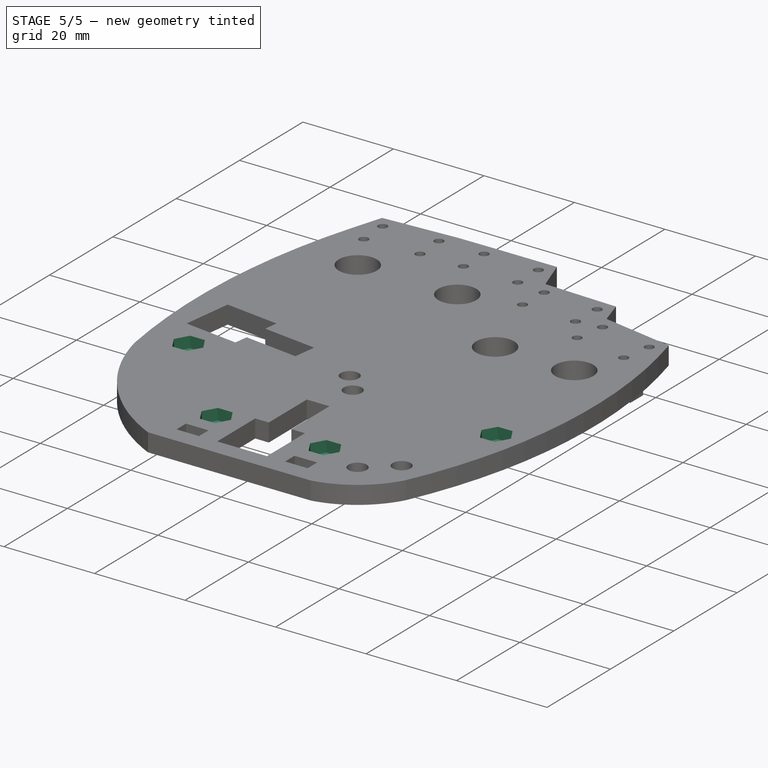
[diagram: stage 5 of 5 — iso view after this stage's code; geometry added in this stage tinted green]
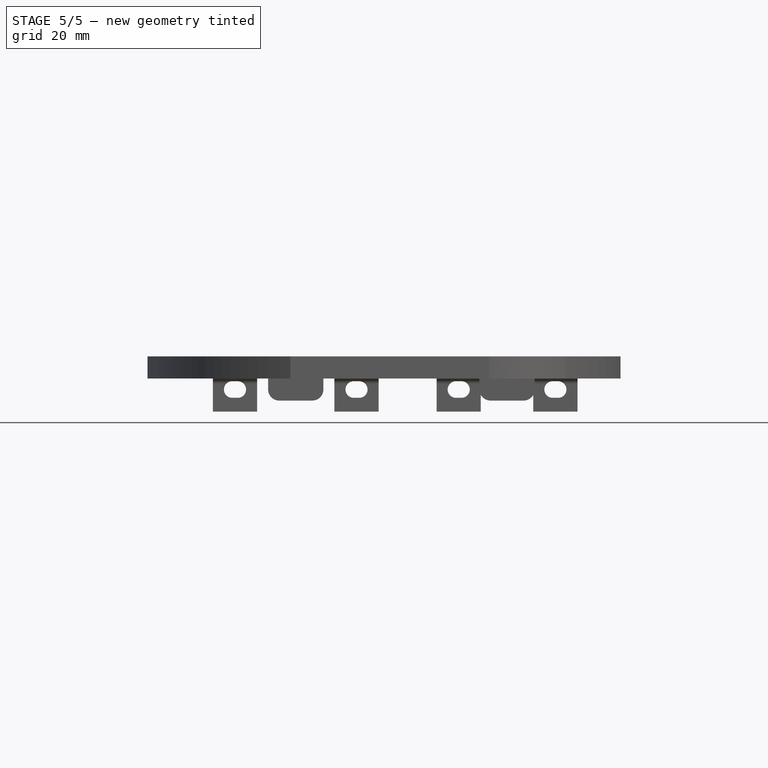
[diagram: stage 5 of 5 — front view after this stage's code; geometry added in this stage tinted green]
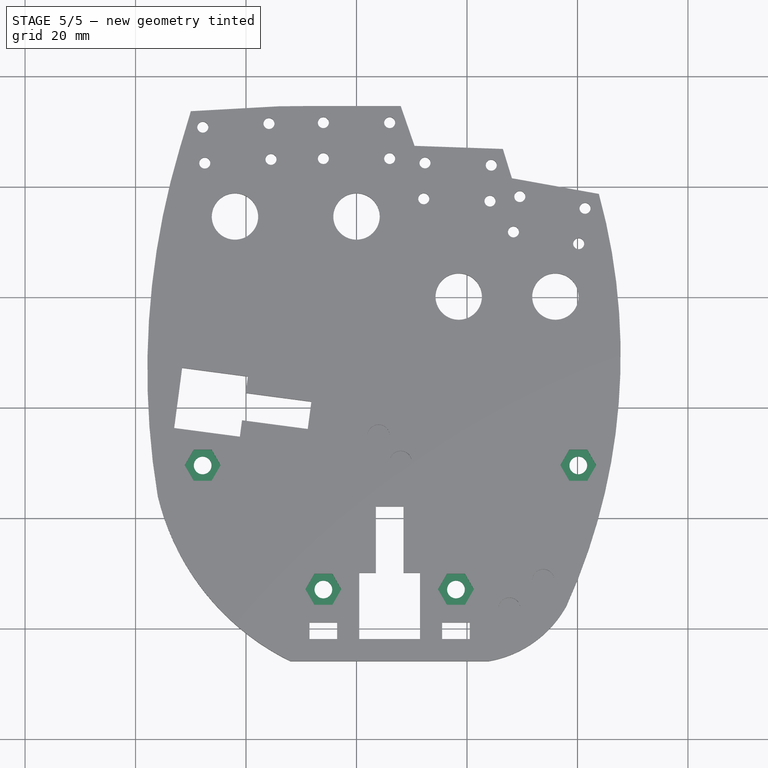
[diagram: stage 5 of 5 — top view after this stage's code; geometry added in this stage tinted green]
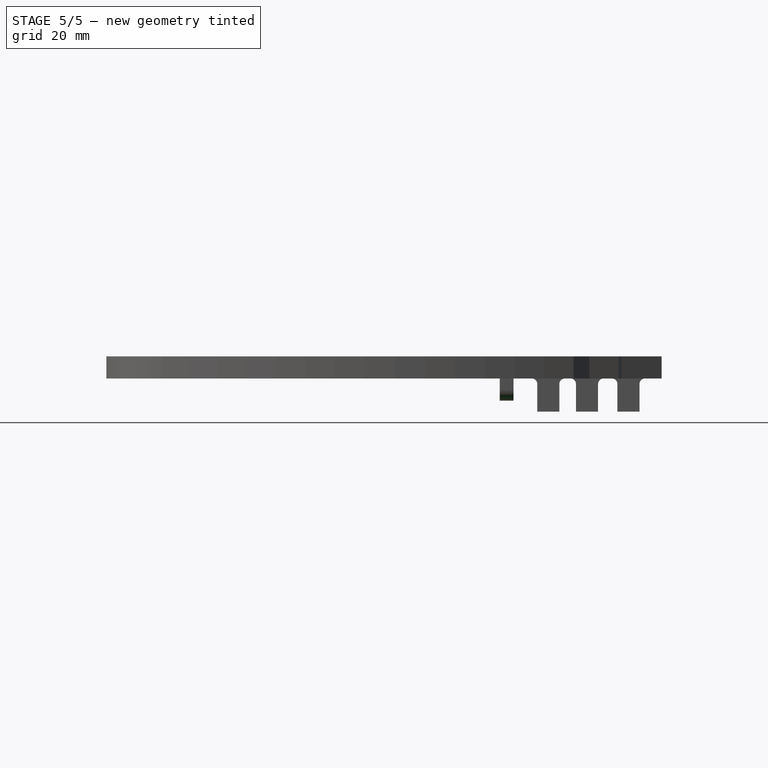
[diagram: stage 5 of 5 — right view after this stage's code; geometry added in this stage tinted green]
FEATURE [Sketcher::SketchObject] Sketch023
  ExternalGeometry = -> [Pad002]
  Placement = pos=(0,0,4) rot=(0,0,1;0rad)
  Support = -> Pad002 [Face5]
  sketch-geometry (8):
    g0: LineSegment [constr] StartX=18 StartY=1 StartZ=0 EndX=18 EndY=7 EndZ=0
    g1: LineSegment [constr] StartX=-6 StartY=1 StartZ=0 EndX=-6 EndY=7 EndZ=0
    g2: LineSegment [constr] StartX=-27.0666 StartY=35.4127 StartZ=0 EndX=-27.855 EndY=29.4647 EndZ=0
    g3: Circle CenterX=-6 CenterY=7 CenterZ=0 NormalX=0 NormalY=0 NormalZ=1 Radius=1.6
    g4: Circle CenterX=18 CenterY=7 CenterZ=0 NormalX=0 NormalY=0 NormalZ=1 Radius=1.6
    g5: Circle CenterX=-27.855 CenterY=29.4647 CenterZ=0 NormalX=0 NormalY=0 NormalZ=1 Radius=1.6
    g6: LineSegment [constr] StartX=-27.855 StartY=29.4647 StartZ=0 EndX=40.145 EndY=29.4647 EndZ=0
    g7: Circle CenterX=40.145 CenterY=29.4647 CenterZ=0 NormalX=0 NormalY=0 NormalZ=1 Radius=1.6
  constraints (23):
    c: PointOnObject(g0,g-3)
    c: PointOnObject(g1,g-4)
    c: Vertical(g1)
    c: Vertical(g0)
    c: Symmetric(g-4,g-4,g1)
    c: Symmetric(g-3,g-3,g0)
    c: Perpendicular(g2,g-5)
    c: Coincident(g3,g1)
    c: Coincident(g4,g0)
    c: Coincident(g5,g2)
    c: PointOnObject(g2,g-5)
    c: Symmetric(g-5,g-5,g2)
    c: Equal(g2,g1)
    c: Equal(g1,g0)
    c: Coincident(g6,g2)
    c: Horizontal(g6)
    c: Coincident(g7,g6)
    c: Equal(g7,g4)
    c: Equal(g4,g3)
    c: Equal(g3,g5)
    c: Radius(g5) = 1.6
    c: DistanceX(g6) = 68
    c: DistanceY(g0) = 6
FEATURE [PartDesign::Pocket] Pocket013
  Length = 5
  Sketch = -> Sketch023
  Type = 1
FEATURE [Sketcher::SketchObject] Sketch024
  ExternalGeometry = -> [Pocket013]
  Placement = pos=(0,0,4) rot=(0,0,1;0rad)
  Support = -> Pocket013 [Face5]
  sketch-geometry (28):
    g0: LineSegment StartX=19.625 StartY=9.81458 StartZ=0 EndX=16.375 EndY=9.81458 EndZ=0
    g1: LineSegment StartX=16.375 StartY=9.81458 StartZ=0 EndX=14.75 EndY=7 EndZ=0
    g2: LineSegment StartX=14.75 StartY=7 StartZ=0 EndX=16.375 EndY=4.18542 EndZ=0
    g3: LineSegment StartX=16.375 StartY=4.18542 StartZ=0 EndX=19.625 EndY=4.18542 EndZ=0
    g4: LineSegment StartX=19.625 StartY=4.18542 StartZ=0 EndX=21.25 EndY=7 EndZ=0
    g5: LineSegment StartX=21.25 StartY=7 StartZ=0 EndX=19.625 EndY=9.81458 EndZ=0
    g6: Circle [constr] CenterX=18 CenterY=7 CenterZ=0 NormalX=0 NormalY=0 NormalZ=1 Radius=3.25
    g7: LineSegment StartX=43.395 StartY=29.4647 StartZ=0 EndX=41.77 EndY=32.2793 EndZ=0
    g8: LineSegment StartX=41.77 StartY=32.2793 StartZ=0 EndX=38.52 EndY=32.2793 EndZ=0
    g9: LineSegment StartX=38.52 StartY=32.2793 StartZ=0 EndX=36.895 EndY=29.4647 EndZ=0
    g10: LineSegment StartX=36.895 StartY=29.4647 StartZ=0 EndX=38.52 EndY=26.6502 EndZ=0
    g11: LineSegment StartX=38.52 StartY=26.6502 StartZ=0 EndX=41.77 EndY=26.6502 EndZ=0
    g12: LineSegment StartX=41.77 StartY=26.6502 StartZ=0 EndX=43.395 EndY=29.4647 EndZ=0
    g13: Circle [constr] CenterX=40.145 CenterY=29.4647 CenterZ=0 NormalX=0 NormalY=0 NormalZ=1 Radius=3.25
    g14: LineSegment StartX=-24.605 StartY=29.4647 StartZ=0 EndX=-26.23 EndY=32.2793 EndZ=0
    g15: LineSegment StartX=-26.23 StartY=32.2793 StartZ=0 EndX=-29.48 EndY=32.2793 EndZ=0
    g16: LineSegment StartX=-29.48 StartY=32.2793 StartZ=0 EndX=-31.105 EndY=29.4647 EndZ=0
    g17: LineSegment StartX=-31.105 StartY=29.4647 StartZ=0 EndX=-29.48 EndY=26.6502 EndZ=0
    g18: LineSegment StartX=-29.48 StartY=26.6502 StartZ=0 EndX=-26.23 EndY=26.6502 EndZ=0
    g19: LineSegment StartX=-26.23 StartY=26.6502 StartZ=0 EndX=-24.605 EndY=29.4647 EndZ=0
    g20: Circle [constr] CenterX=-27.855 CenterY=29.4647 CenterZ=0 NormalX=0 NormalY=0 NormalZ=1 Radius=3.25
    g21: LineSegment StartX=-2.75 StartY=7 StartZ=0 EndX=-4.375 EndY=9.81458 EndZ=0
    g22: LineSegment StartX=-4.375 StartY=9.81458 StartZ=0 EndX=-7.625 EndY=9.81458 EndZ=0
    g23: LineSegment StartX=-7.625 StartY=9.81458 StartZ=0 EndX=-9.25 EndY=7 EndZ=0
    g24: LineSegment StartX=-9.25 StartY=7 StartZ=0 EndX=-7.625 EndY=4.18542 EndZ=0
    g25: LineSegment StartX=-7.625 StartY=4.18542 StartZ=0 EndX=-4.375 EndY=4.18542 EndZ=0
    g26: LineSegment StartX=-4.375 StartY=4.18542 StartZ=0 EndX=-2.75 EndY=7 EndZ=0
    g27: Circle [constr] CenterX=-6 CenterY=7 CenterZ=0 NormalX=0 NormalY=0 NormalZ=1 Radius=3.25
  constraints (68):
    c: Coincident(g0,g1)
    c: Coincident(g1,g2)
    c: Coincident(g2,g3)
    c: Coincident(g3,g4)
    c: Coincident(g4,g5)
    c: Coincident(g5,g0)
    c: Equal(g0, g1-g5) x5
    c: PointOnObject(g0,g6)
    c: PointOnObject(g1,g6)
    c: PointOnObject(g2,g6)
    c: PointOnObject(g3,g6)
    c: PointOnObject(g4,g6)
    c: PointOnObject(g5,g6)
    c: Coincident(g3,g-4)
    c: Coincident(g7,g8)
    c: Coincident(g8,g9)
    c: Coincident(g9,g10)
    c: Coincident(g10,g11)
    c: Coincident(g11,g12)
    c: Coincident(g12,g7)
    c: Equal(g7, g8-g12) x5
    c: PointOnObject(g7,g13)
    c: PointOnObject(g8,g13)
    c: PointOnObject(g9,g13)
    c: PointOnObject(g10,g13)
    c: PointOnObject(g11,g13)
    c: PointOnObject(g12,g13)
    c: Coincident(g10,g-3)
    c: Horizontal(g11)
    c: Coincident(g14,g15)
    c: Coincident(g15,g16)
    c: Coincident(g16,g17)
    c: Coincident(g17,g18)
    c: Coincident(g18,g19)
    c: Coincident(g19,g14)
    c: Equal(g14, g15-g19) x5
    c: PointOnObject(g14,g20)
    c: PointOnObject(g15,g20)
    c: PointOnObject(g16,g20)
    c: PointOnObject(g17,g20)
    c: PointOnObject(g18,g20)
    c: PointOnObject(g19,g20)
    c: Coincident(g17,g-6)
    c: Horizontal(g18)
    c: Coincident(g21,g22)
    c: Coincident(g22,g23)
    c: Coincident(g23,g24)
    c: Coincident(g24,g25)
    c: Coincident(g25,g26)
    c: Coincident(g26,g21)
    c: Equal(g21, g22-g26) x5
    c: PointOnObject(g21,g27)
    c: PointOnObject(g22,g27)
    c: PointOnObject(g23,g27)
    c: PointOnObject(g24,g27)
    c: PointOnObject(g25,g27)
    c: PointOnObject(g26,g27)
    c: Coincident(g24,g-5)
    c: Horizontal(g0)
    c: Horizontal(g22)
    c: Coincident(g6,g-4)
    c: Coincident(g27,g-5)
    c: Coincident(g20,g-6)
    c: Coincident(g13,g-3)
    c: Equal(g13,g6)
    c: Equal(g6,g27)
    c: Equal(g27,g20)
    c: Radius(g6) = 3.25
FEATURE [PartDesign::Pocket] Pocket014
  Length = 2.5
  Sketch = -> Sketch024
  Type = 0
FEATURE [PartDesign::Fillet] Fillet
  Base = -> Pocket014 [Edge313,Edge307,Edge223,Edge217]
  Radius = 2
FEATURE [PartDesign::Fillet] Fillet001
  Base = -> Fillet [Edge35,Edge83,Edge34,Edge82,Edge44,Edge45,Edge89,Edge92,Edge76,Edge79]
  Radius = 0
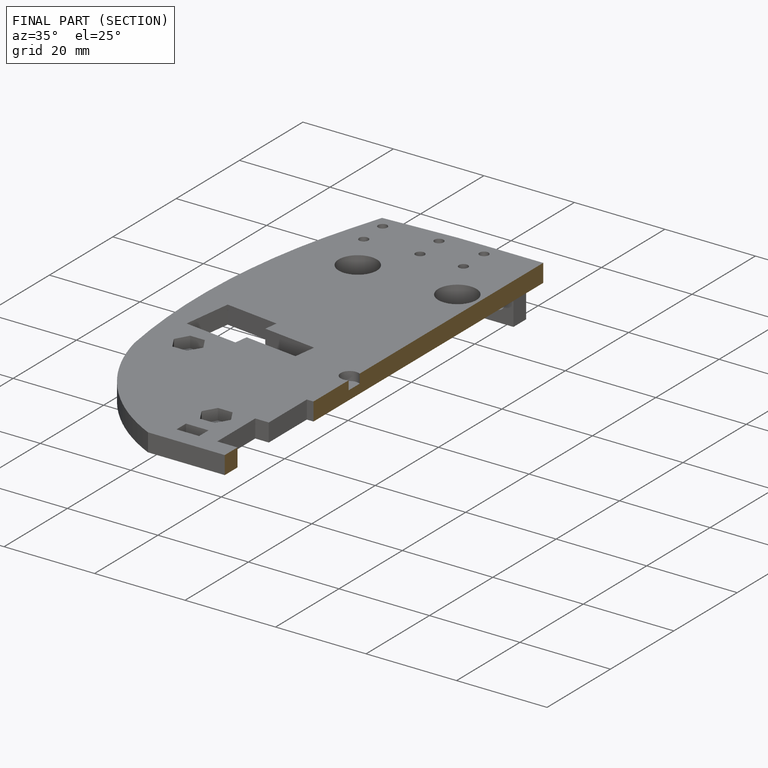
[diagram: finished part — half-section view (interior)]
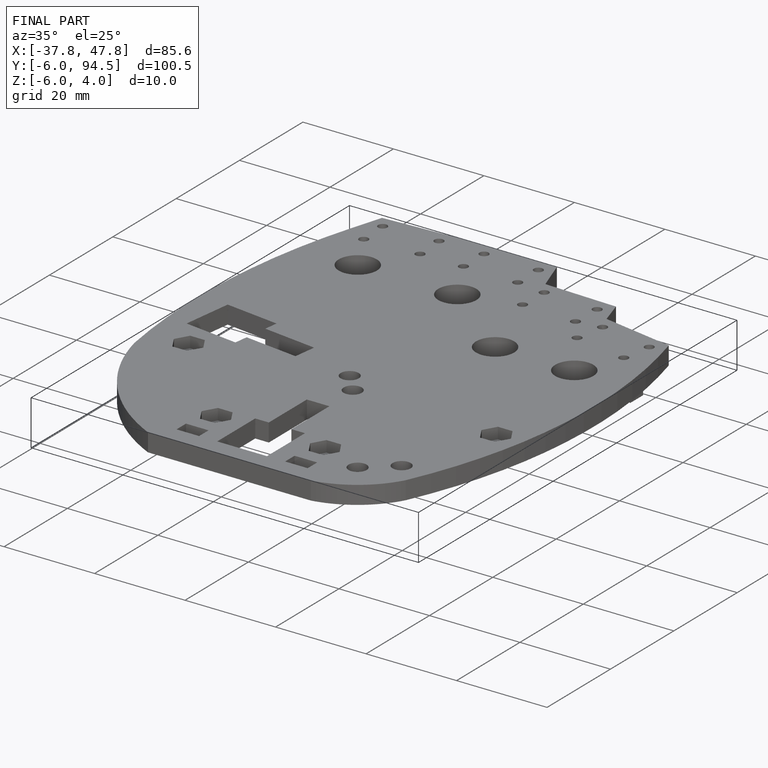
[diagram: finished part — iso view with bounding-box wireframe]
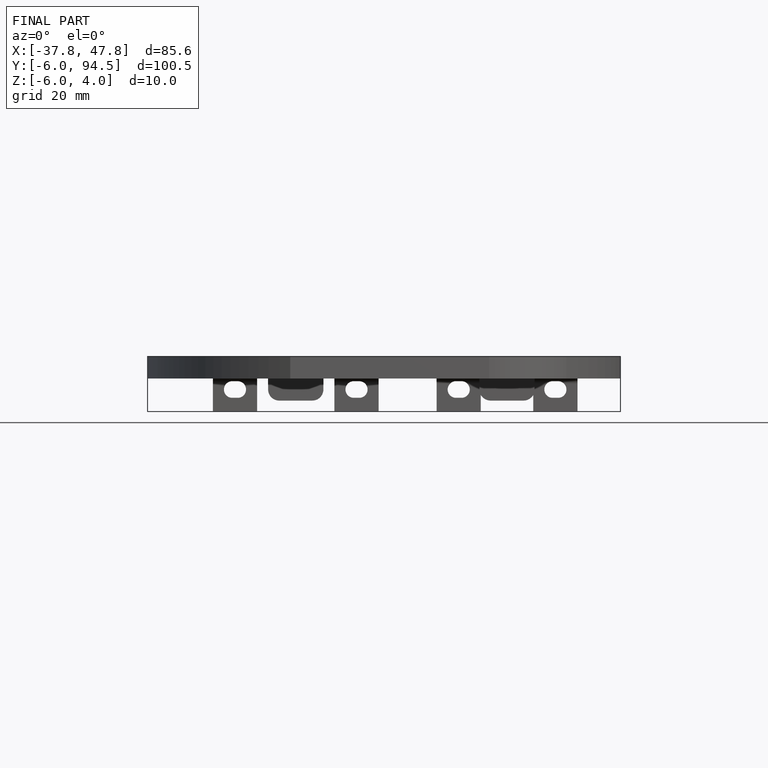
[diagram: finished part — front view with bounding-box wireframe]
